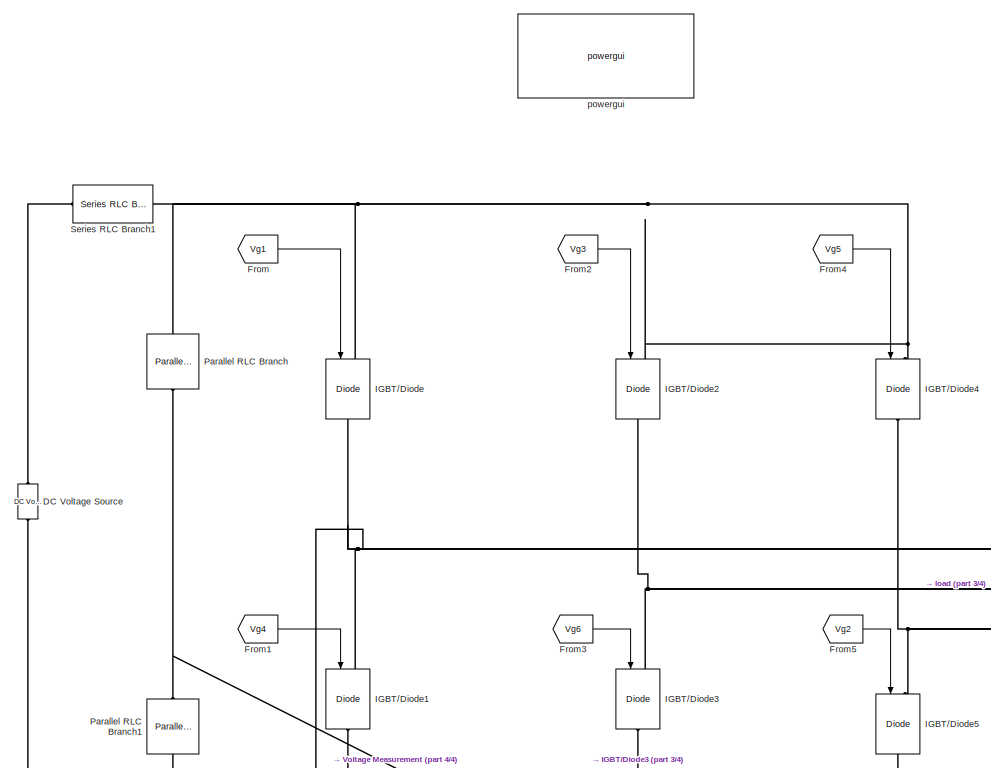
[diagram: root canvas - part 1/4, top center region]
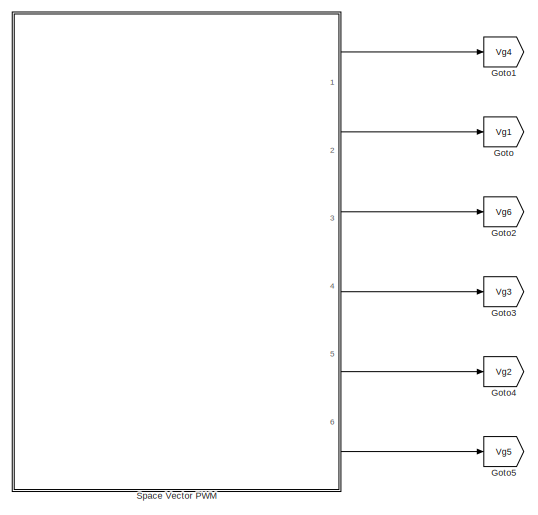
[diagram: root canvas - part 2/4, middle left region]
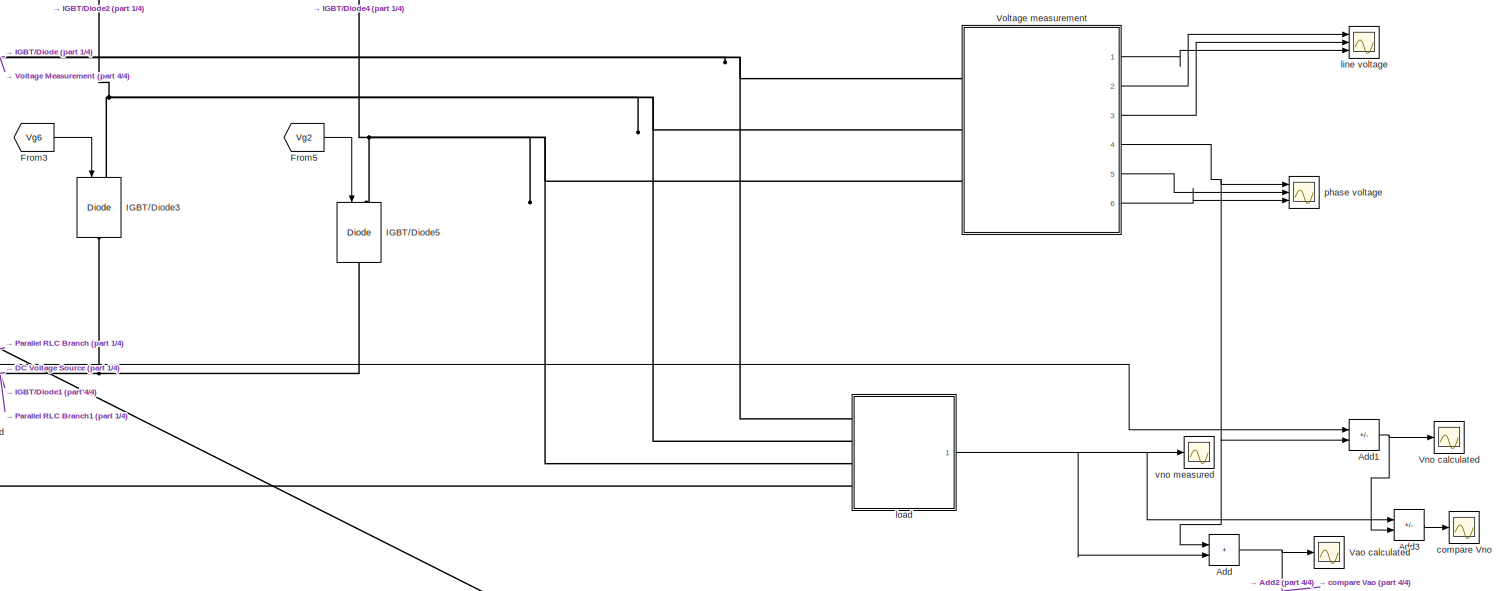
[diagram: root canvas - part 3/4, middle right region]
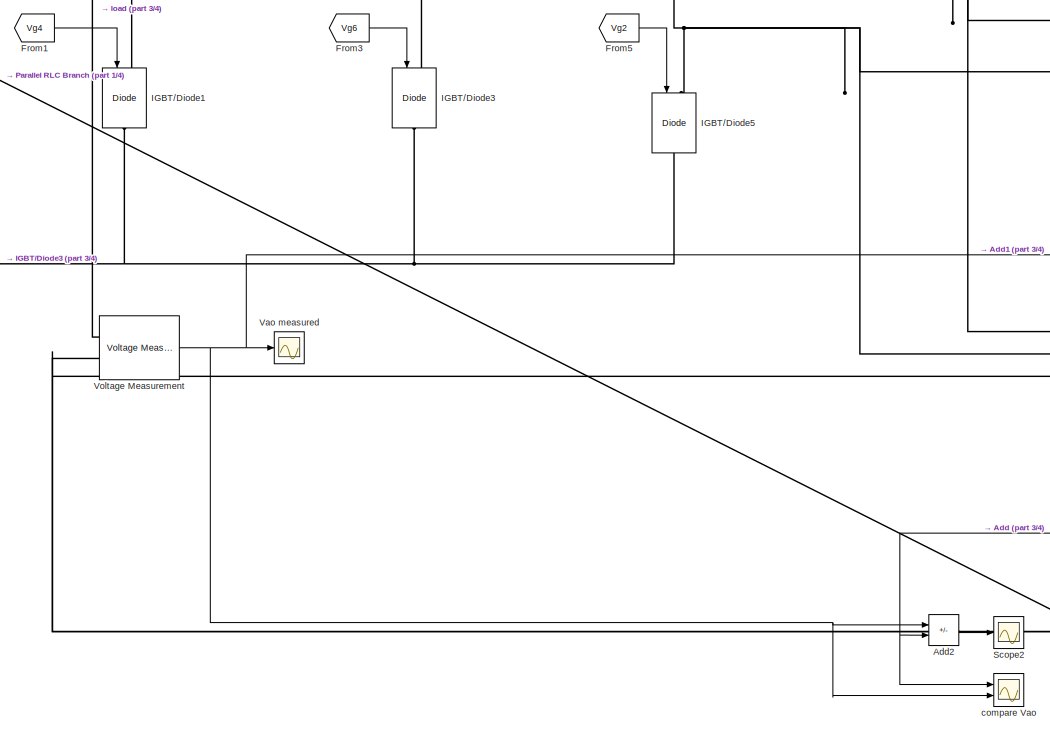
[diagram: root canvas - part 4/4, central region]
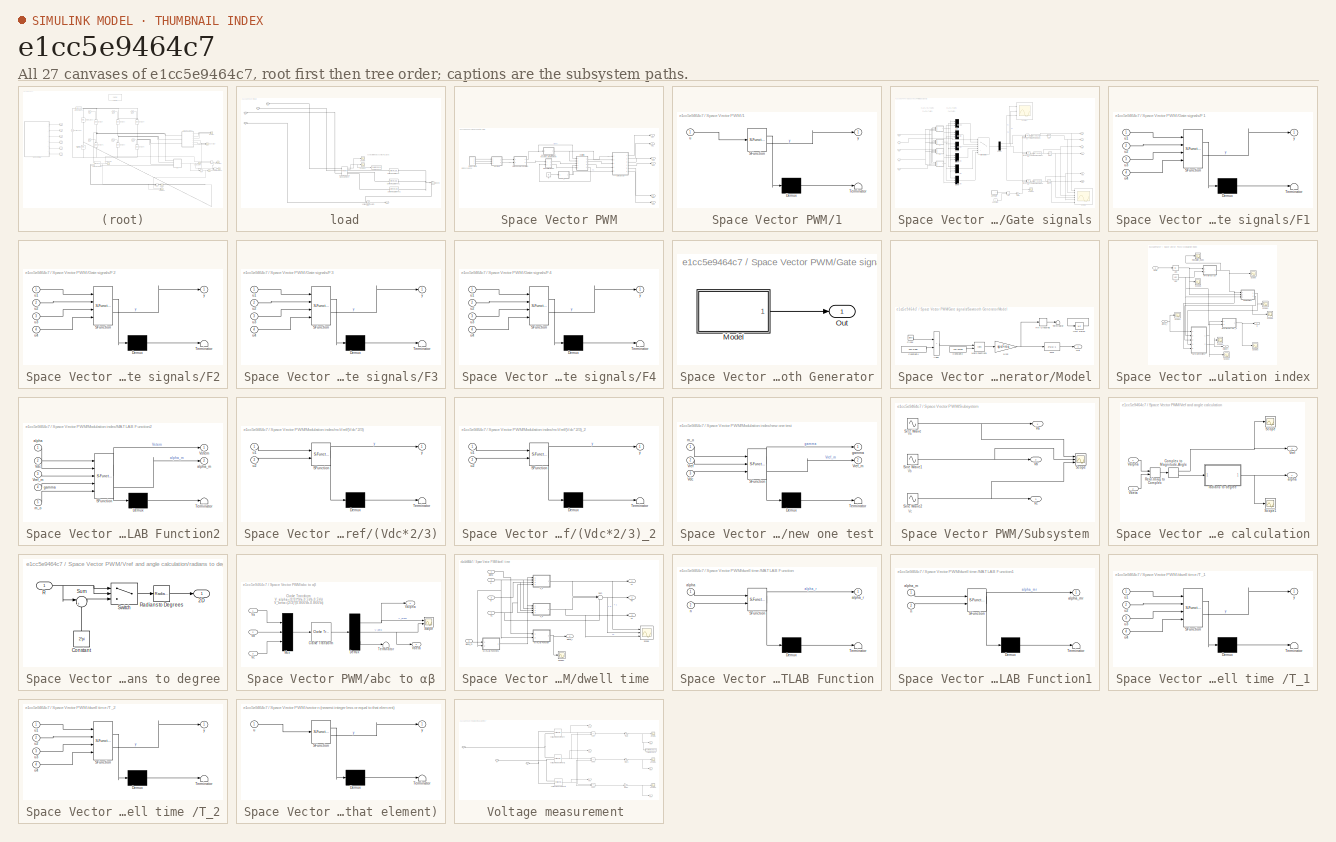
[diagram: thumbnail index - all 27 canvases of the model, root first then tree order]
MODEL slx_e1cc5e9464c7
KIND model
CONFIG AbsTol = auto
CONFIG EnableMultiTasking = off
CONFIG FixedStep = stepsize
CONFIG MaxStep = 2e-6
CONFIG MinStep = auto
CONFIG RelTol = 1e-3
CONFIG SampleTimeConstraint = Unconstrained
CONFIG SolverName = FixedStepAuto
CONFIG StartTime = 0.0
CONFIG StopTime = stoptime
BLOCK [SubSystem]  load
  Ports = [0, 1, 0, 0, 0, 4]
  RequestExecContextInheritance = off
BLOCK [Reference]  load/Ground  REF=spsGroundLib/Ground
  NameLocation = right
  Ports = [0, 0, 0, 0, 0, 1]
  SourceBlock = spsGroundLib/Ground
  SourceProductBaseCode = PS
  SourceType = Ground
BLOCK [Scope]  load/Scope
  Floating = off
  NumInputPorts = 1
  Ports = [1]
  ScopeSpecificationString = Simulink.scopes.TimeScopeBlockCfg('CurrentConfiguration', extmgr.ConfigurationSet(extmgr.Configuration('Core','General UI',true),extmgr.Configuration('Core','Source UI',true),extmgr.Configuration('Sources','WiredSimulink',true,'DataLoggingVariableName','ScopeData4'),extmgr.Configuration('Visuals','Time Domain',true,'SerializedDisplays',{struct('MinYLimReal','-650.01049','MaxYLimReal','563.12849','...<+1601ch>
BLOCK [Scope]  load/Scope1
  Floating = off
  NumInputPorts = 1
  Ports = [1]
  ScopeSpecificationString = Simulink.scopes.TimeScopeBlockCfg('CurrentConfiguration', extmgr.ConfigurationSet(extmgr.Configuration('Core','General UI',true,'FigureColor',[1 1 1]),extmgr.Configuration('Core','Source UI',true),extmgr.Configuration('Sources','WiredSimulink',true,'DataLoggingVariableName','ScopeData5','DataLoggingSaveFormat','StructureWithTime'),extmgr.Configuration('Visuals','Time Domain',true,'SerializedDispla...<+1791ch>
BLOCK [Reference]  load/Series RLC Branch  REF=spsSeriesRLCBranchLib/Series RLC Branch
  Ports = [0, 0, 0, 0, 0, 1, 1]
  SourceBlock = spsSeriesRLCBranchLib/Series RLC Branch
  SourceProductBaseCode = PS
  SourceType = Series RLC Branch
BLOCK [Reference]  load/Series RLC Branch1  REF=spsSeriesRLCBranchLib/Series RLC Branch
  Ports = [0, 0, 0, 0, 0, 1, 1]
  SourceBlock = spsSeriesRLCBranchLib/Series RLC Branch
  SourceProductBaseCode = PS
  SourceType = Series RLC Branch
BLOCK [Reference]  load/Series RLC Branch2  REF=spsSeriesRLCBranchLib/Series RLC Branch
  Ports = [0, 0, 0, 0, 0, 1, 1]
  SourceBlock = spsSeriesRLCBranchLib/Series RLC Branch
  SourceProductBaseCode = PS
  SourceType = Series RLC Branch
BLOCK [Reference]  load/Three-Phase V-I Measurement  REF=spsThreePhaseVIMeasurementLib/Three-Phase
V-I Measurement
  Ports = [0, 2, 0, 0, 0, 3, 3]
  SourceBlock = spsThreePhaseVIMeasurementLib/Three-Phase\nV-I Measurement
  SourceProductBaseCode = PS
  SourceType = Three-Phase VI Measurement
BLOCK [ToWorkspace]  load/To Workspace
  FixptAsFi = on
  MaxDataPoints = inf
  Ports = [1]
  SampleTime = -1
  Save2DSignal = 2-D array (concatenate along first dimension)
  VariableName = Iout
BLOCK [PMIOPort]  load/Va
  Side = Left
BLOCK [PMIOPort]  load/Vb
  Port = 2
  Side = Left
BLOCK [PMIOPort]  load/Vc
  Port = 3
  Side = Left
BLOCK [Outport]  load/Vno
BLOCK [Reference]  load/Voltage Measurement  REF=spsVoltageMeasurementLib/Voltage Measurement
  Ports = [0, 1, 0, 0, 0, 2]
  SourceBlock = spsVoltageMeasurementLib/Voltage Measurement
  SourceProductBaseCode = PS
  SourceType = Voltage Measurement
  UserDataPersistent = on
BLOCK [PMIOPort]  load/o
  Port = 4
  Side = Left
BLOCK [Sum] Add
  IconShape = rectangular
  Ports = [2, 1]
BLOCK [Sum] Add1
  IconShape = rectangular
  Inputs = +-
  Ports = [2, 1]
BLOCK [Sum] Add2
  IconShape = rectangular
  Inputs = +-
  Ports = [2, 1]
BLOCK [Sum] Add3
  IconShape = rectangular
  Inputs = +-
  Ports = [2, 1]
BLOCK [Reference] DC Voltage Source  REF=spsDCVoltageSourceLib/DC Voltage Source
  Ports = [0, 0, 0, 0, 0, 1, 1]
  SourceBlock = spsDCVoltageSourceLib/DC Voltage Source
  SourceProductBaseCode = PS
  SourceType = DC Voltage Source
BLOCK [From] From
  GotoTag = Vg1
BLOCK [From] From1
  GotoTag = Vg4
BLOCK [From] From2
  GotoTag = Vg3
BLOCK [From] From3
  GotoTag = Vg6
BLOCK [From] From4
  GotoTag = Vg5
BLOCK [From] From5
  GotoTag = Vg2
BLOCK [Goto] Goto
  GotoTag = Vg1
BLOCK [Goto] Goto1
  GotoTag = Vg4
BLOCK [Goto] Goto2
  GotoTag = Vg6
BLOCK [Goto] Goto3
  GotoTag = Vg3
BLOCK [Goto] Goto4
  GotoTag = Vg2
BLOCK [Goto] Goto5
  GotoTag = Vg5
BLOCK [Reference] IGBT//Diode  REF=spsIGBTDiodeLib/IGBT//Diode
  NameLocation = left
  Ports = [1, 0, 0, 0, 0, 1, 1]
  SourceBlock = spsIGBTDiodeLib/IGBT//Diode
  SourceProductBaseCode = PS
  SourceType = IGBT/Diode
BLOCK [Reference] IGBT//Diode1  REF=spsIGBTDiodeLib/IGBT//Diode
  NameLocation = left
  Ports = [1, 0, 0, 0, 0, 1, 1]
  SourceBlock = spsIGBTDiodeLib/IGBT//Diode
  SourceProductBaseCode = PS
  SourceType = IGBT/Diode
BLOCK [Reference] IGBT//Diode2  REF=spsIGBTDiodeLib/IGBT//Diode
  NameLocation = left
  Ports = [1, 0, 0, 0, 0, 1, 1]
  SourceBlock = spsIGBTDiodeLib/IGBT//Diode
  SourceProductBaseCode = PS
  SourceType = IGBT/Diode
BLOCK [Reference] IGBT//Diode3  REF=spsIGBTDiodeLib/IGBT//Diode
  NameLocation = left
  Ports = [1, 0, 0, 0, 0, 1, 1]
  SourceBlock = spsIGBTDiodeLib/IGBT//Diode
  SourceProductBaseCode = PS
  SourceType = IGBT/Diode
BLOCK [Reference] IGBT//Diode4  REF=spsIGBTDiodeLib/IGBT//Diode
  NameLocation = left
  Ports = [1, 0, 0, 0, 0, 1, 1]
  SourceBlock = spsIGBTDiodeLib/IGBT//Diode
  SourceProductBaseCode = PS
  SourceType = IGBT/Diode
BLOCK [Reference] IGBT//Diode5  REF=spsIGBTDiodeLib/IGBT//Diode
  NameLocation = left
  Ports = [1, 0, 0, 0, 0, 1, 1]
  SourceBlock = spsIGBTDiodeLib/IGBT//Diode
  SourceProductBaseCode = PS
  SourceType = IGBT/Diode
BLOCK [Reference] Parallel RLC Branch  REF=spsParallelRLCBranchLib/Parallel RLC Branch
  AttributesFormatString = \n
  NameLocation = left
  Ports = [0, 0, 0, 0, 0, 1, 1]
  SourceBlock = spsParallelRLCBranchLib/Parallel RLC Branch
  SourceProductBaseCode = PS
  SourceType = Parallel RLC Branch
BLOCK [Reference] Parallel RLC Branch1  REF=spsParallelRLCBranchLib/Parallel RLC Branch
  AttributesFormatString = \n
  NameLocation = left
  Ports = [0, 0, 0, 0, 0, 1, 1]
  SourceBlock = spsParallelRLCBranchLib/Parallel RLC Branch
  SourceProductBaseCode = PS
  SourceType = Parallel RLC Branch
BLOCK [Scope] Scope2
  Floating = off
  NumInputPorts = 1
  Ports = [1]
  ScopeSpecificationString = Simulink.scopes.TimeScopeBlockCfg('CurrentConfiguration', extmgr.ConfigurationSet(extmgr.Configuration('Core','General UI',true),extmgr.Configuration('Core','Source UI',true),extmgr.Configuration('Sources','WiredSimulink',true,'DataLoggingVariableName','ScopeData5'),extmgr.Configuration('Visuals','Time Domain',true,'SerializedDisplays',{struct('MinYLimReal','-0.00000000000029','MaxYLimReal','0.000...<+1454ch>
BLOCK [Reference] Series RLC Branch1  REF=spsSeriesRLCBranchLib/Series RLC Branch
  NameLocation = top
  Ports = [0, 0, 0, 0, 0, 1, 1]
  SourceBlock = spsSeriesRLCBranchLib/Series RLC Branch
  SourceProductBaseCode = PS
  SourceType = Series RLC Branch
BLOCK [SubSystem] Space Vector PWM
  Ports = [0, 6]
  RequestExecContextInheritance = off
BLOCK [SubSystem] Space Vector PWM/1
  ErrorFcn = Stateflow.Translate.translate
  PermitHierarchicalResolution = ExplicitOnly
  Ports = [1, 1]
  RequestExecContextInheritance = off
  SFBlockType = MATLAB Function
  TreatAsAtomicUnit = on
BLOCK [Demux] Space Vector PWM/1/ Demux 
  Outputs = 1
  Ports = [1, 1]
BLOCK [S-Function] Space Vector PWM/1/ SFunction 
  EnableBusSupport = on
  FunctionName = sf_sfun
  PortCounts = [1 2]
  Ports = [1, 2]
  SFcnIsStateOwnerBlock = off
  SFunctionDeploymentMode = off
  Tag = Stateflow S-Function 9
BLOCK [Terminator] Space Vector PWM/1/ Terminator 
BLOCK [Inport] Space Vector PWM/1/u
BLOCK [Outport] Space Vector PWM/1/y
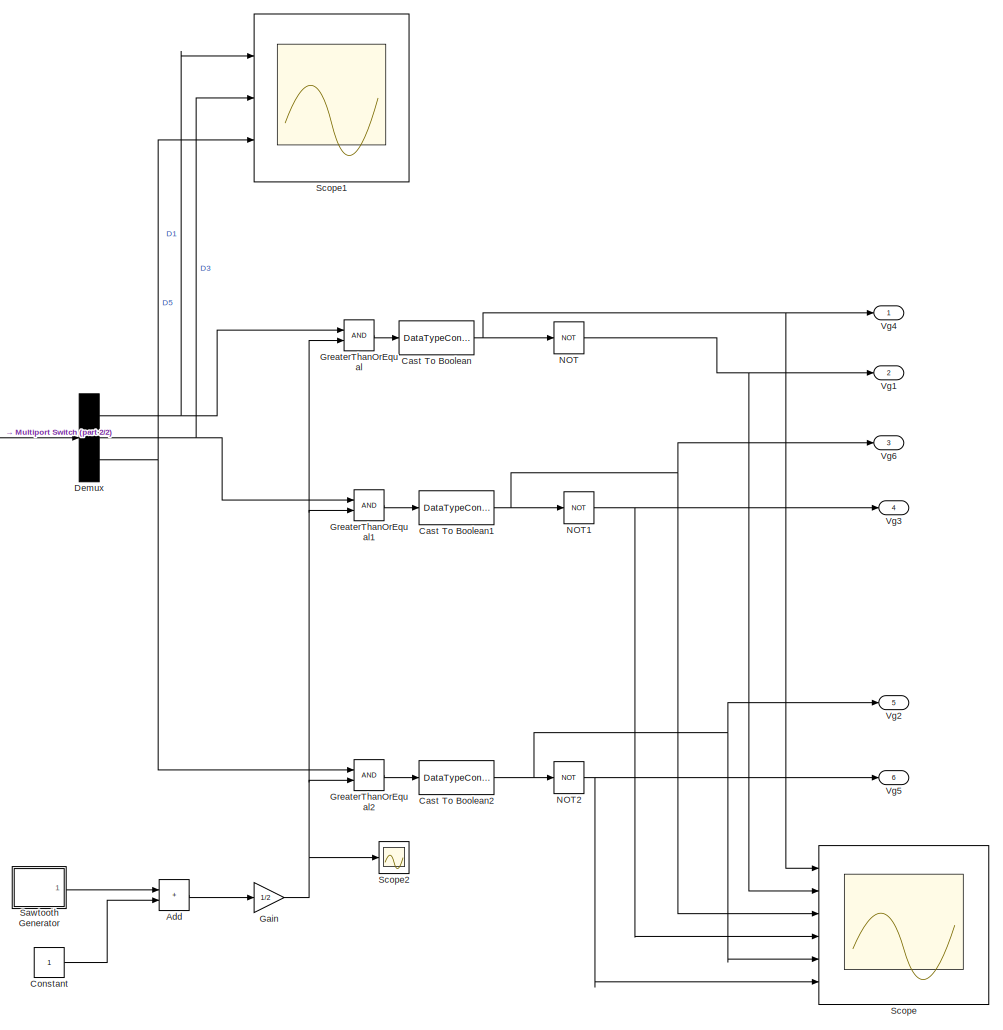
[diagram: Space Vector PWM/Gate signals - part 1/2, right side, full height]
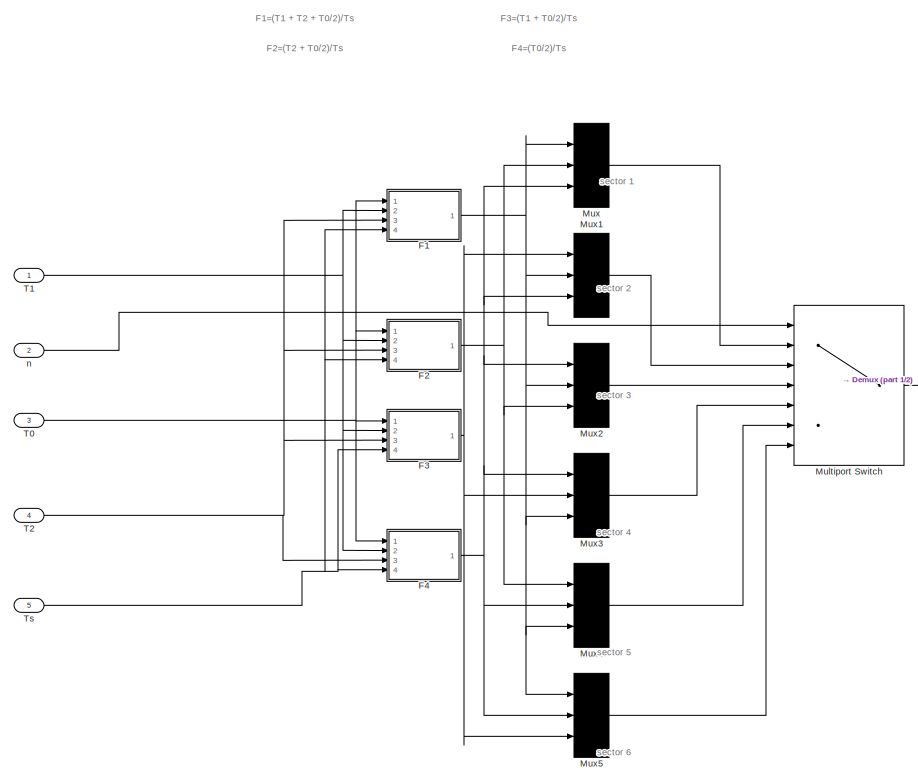
[diagram: Space Vector PWM/Gate signals - part 2/2, left side, full height]
BLOCK [SubSystem] Space Vector PWM/Gate signals
  Ports = [5, 6]
  RequestExecContextInheritance = off
BLOCK [Sum] Space Vector PWM/Gate signals/Add
  IconShape = rectangular
  Ports = [2, 1]
BLOCK [DataTypeConversion] Space Vector PWM/Gate signals/Cast To Boolean
  OutDataTypeStr = boolean
  RndMeth = Floor
  SaturateOnIntegerOverflow = off
BLOCK [DataTypeConversion] Space Vector PWM/Gate signals/Cast To Boolean1
  OutDataTypeStr = boolean
  RndMeth = Floor
  SaturateOnIntegerOverflow = off
BLOCK [DataTypeConversion] Space Vector PWM/Gate signals/Cast To Boolean2
  OutDataTypeStr = boolean
  RndMeth = Floor
  SaturateOnIntegerOverflow = off
BLOCK [Constant] Space Vector PWM/Gate signals/Constant
BLOCK [Demux] Space Vector PWM/Gate signals/Demux
  Outputs = 3
  Ports = [1, 3]
BLOCK [SubSystem] Space Vector PWM/Gate signals/F1
  ErrorFcn = Stateflow.Translate.translate
  PermitHierarchicalResolution = ExplicitOnly
  Ports = [4, 1]
  RequestExecContextInheritance = off
  SFBlockType = MATLAB Function
  TreatAsAtomicUnit = on
BLOCK [Demux] Space Vector PWM/Gate signals/F1/ Demux 
  Outputs = 1
  Ports = [1, 1]
BLOCK [S-Function] Space Vector PWM/Gate signals/F1/ SFunction 
  EnableBusSupport = on
  FunctionName = sf_sfun
  PortCounts = [4 2]
  Ports = [4, 2]
  SFcnIsStateOwnerBlock = off
  SFunctionDeploymentMode = off
  Tag = Stateflow S-Function 5
BLOCK [Terminator] Space Vector PWM/Gate signals/F1/ Terminator 
BLOCK [Inport] Space Vector PWM/Gate signals/F1/u1
BLOCK [Inport] Space Vector PWM/Gate signals/F1/u2
  Port = 2
BLOCK [Inport] Space Vector PWM/Gate signals/F1/u3
  Port = 3
BLOCK [Inport] Space Vector PWM/Gate signals/F1/u4
  Port = 4
BLOCK [Outport] Space Vector PWM/Gate signals/F1/y
BLOCK [SubSystem] Space Vector PWM/Gate signals/F2
  ErrorFcn = Stateflow.Translate.translate
  PermitHierarchicalResolution = ExplicitOnly
  Ports = [4, 1]
  RequestExecContextInheritance = off
  SFBlockType = MATLAB Function
  TreatAsAtomicUnit = on
BLOCK [Demux] Space Vector PWM/Gate signals/F2/ Demux 
  Outputs = 1
  Ports = [1, 1]
BLOCK [S-Function] Space Vector PWM/Gate signals/F2/ SFunction 
  EnableBusSupport = on
  FunctionName = sf_sfun
  PortCounts = [4 2]
  Ports = [4, 2]
  SFcnIsStateOwnerBlock = off
  SFunctionDeploymentMode = off
  Tag = Stateflow S-Function 6
BLOCK [Terminator] Space Vector PWM/Gate signals/F2/ Terminator 
BLOCK [Inport] Space Vector PWM/Gate signals/F2/u1
BLOCK [Inport] Space Vector PWM/Gate signals/F2/u2
  Port = 2
BLOCK [Inport] Space Vector PWM/Gate signals/F2/u3
  Port = 3
BLOCK [Inport] Space Vector PWM/Gate signals/F2/u4
  Port = 4
BLOCK [Outport] Space Vector PWM/Gate signals/F2/y
BLOCK [SubSystem] Space Vector PWM/Gate signals/F3
  ErrorFcn = Stateflow.Translate.translate
  PermitHierarchicalResolution = ExplicitOnly
  Ports = [4, 1]
  RequestExecContextInheritance = off
  SFBlockType = MATLAB Function
  TreatAsAtomicUnit = on
BLOCK [Demux] Space Vector PWM/Gate signals/F3/ Demux 
  Outputs = 1
  Ports = [1, 1]
BLOCK [S-Function] Space Vector PWM/Gate signals/F3/ SFunction 
  EnableBusSupport = on
  FunctionName = sf_sfun
  PortCounts = [4 2]
  Ports = [4, 2]
  SFcnIsStateOwnerBlock = off
  SFunctionDeploymentMode = off
  Tag = Stateflow S-Function 7
BLOCK [Terminator] Space Vector PWM/Gate signals/F3/ Terminator 
BLOCK [Inport] Space Vector PWM/Gate signals/F3/u1
BLOCK [Inport] Space Vector PWM/Gate signals/F3/u2
  Port = 2
BLOCK [Inport] Space Vector PWM/Gate signals/F3/u3
  Port = 3
BLOCK [Inport] Space Vector PWM/Gate signals/F3/u4
  Port = 4
BLOCK [Outport] Space Vector PWM/Gate signals/F3/y
BLOCK [SubSystem] Space Vector PWM/Gate signals/F4
  ErrorFcn = Stateflow.Translate.translate
  PermitHierarchicalResolution = ExplicitOnly
  Ports = [4, 1]
  RequestExecContextInheritance = off
  SFBlockType = MATLAB Function
  TreatAsAtomicUnit = on
BLOCK [Demux] Space Vector PWM/Gate signals/F4/ Demux 
  Outputs = 1
  Ports = [1, 1]
BLOCK [S-Function] Space Vector PWM/Gate signals/F4/ SFunction 
  EnableBusSupport = on
  FunctionName = sf_sfun
  PortCounts = [4 2]
  Ports = [4, 2]
  SFcnIsStateOwnerBlock = off
  SFunctionDeploymentMode = off
  Tag = Stateflow S-Function 8
BLOCK [Terminator] Space Vector PWM/Gate signals/F4/ Terminator 
BLOCK [Inport] Space Vector PWM/Gate signals/F4/u1
BLOCK [Inport] Space Vector PWM/Gate signals/F4/u2
  Port = 2
BLOCK [Inport] Space Vector PWM/Gate signals/F4/u3
  Port = 3
BLOCK [Inport] Space Vector PWM/Gate signals/F4/u4
  Port = 4
BLOCK [Outport] Space Vector PWM/Gate signals/F4/y
BLOCK [Gain] Space Vector PWM/Gate signals/Gain
  Gain = 1/2
BLOCK [RelationalOperator] Space Vector PWM/Gate signals/GreaterThanOrEqual
  InputSameDT = off
  OutDataTypeStr = boolean
  Ports = [2, 1]
  RndMeth = Simplest
BLOCK [RelationalOperator] Space Vector PWM/Gate signals/GreaterThanOrEqual1
  InputSameDT = off
  OutDataTypeStr = boolean
  Ports = [2, 1]
  RndMeth = Simplest
BLOCK [RelationalOperator] Space Vector PWM/Gate signals/GreaterThanOrEqual2
  InputSameDT = off
  OutDataTypeStr = boolean
  Ports = [2, 1]
  RndMeth = Simplest
BLOCK [MultiPortSwitch] Space Vector PWM/Gate signals/Multiport Switch
  DiagnosticForDefault = None
  InputSameDT = off
  Inputs = 6
  Ports = [7, 1]
  SaturateOnIntegerOverflow = off
BLOCK [Mux] Space Vector PWM/Gate signals/Mux
  DisplayOption = bar
  Inputs = 3
  Ports = [3, 1]
BLOCK [Mux] Space Vector PWM/Gate signals/Mux1
  DisplayOption = bar
  Inputs = 3
  Ports = [3, 1]
BLOCK [Mux] Space Vector PWM/Gate signals/Mux2
  DisplayOption = bar
  Inputs = 3
  Ports = [3, 1]
BLOCK [Mux] Space Vector PWM/Gate signals/Mux3
  DisplayOption = bar
  Inputs = 3
  Ports = [3, 1]
BLOCK [Mux] Space Vector PWM/Gate signals/Mux4
  DisplayOption = bar
  Inputs = 3
  Ports = [3, 1]
BLOCK [Mux] Space Vector PWM/Gate signals/Mux5
  DisplayOption = bar
  Inputs = 3
  Ports = [3, 1]
BLOCK [Logic] Space Vector PWM/Gate signals/NOT
  AllPortsSameDT = off
  IconShape = distinctive
  Operator = NOT
  OutDataTypeStr = boolean
  Ports = [1, 1]
BLOCK [Logic] Space Vector PWM/Gate signals/NOT1
  AllPortsSameDT = off
  IconShape = distinctive
  Operator = NOT
  OutDataTypeStr = boolean
  Ports = [1, 1]
BLOCK [Logic] Space Vector PWM/Gate signals/NOT2
  AllPortsSameDT = off
  IconShape = distinctive
  Operator = NOT
  OutDataTypeStr = boolean
  Ports = [1, 1]
BLOCK [SubSystem] Space Vector PWM/Gate signals/Sawtooth Generator
  AncestorBlock = spsSawtoothGeneratorLib/Sawtooth\nGenerator
  CloseFcn = sps_rtmsupport('CloseFcn', gcbh);
  CopyFcn = sps_rtmsupport('CopyFcn', gcbh);
  DeleteFcn = sps_rtmsupport('DeleteFcn', gcbh);
  DialogController = POWERSYS.PowerSysDialog
  LoadFcn = sps_rtmsupport('LoadFcn', gcbh);
  ModelCloseFcn = sps_rtmsupport('ModelCloseFcn', gcbh);
  NameChangeFcn = sps_rtmsupport('NameChangeFcn', gcbh);
  OpenFcn = sps_rtmsupport('OpenFcn', gcbh, []);
  Ports = [0, 1]
  PostSaveFcn = sps_rtmsupport('PostSaveFcn', gcbh);
  PreCopyFcn = sps_rtmsupport('PreCopyFcn', gcbh);
  PreDeleteFcn = sps_rtmsupport('PreDeleteFcn', gcbh);
  PreSaveFcn = sps_rtmsupport('PreSaveFcn', gcbh);
  RequestExecContextInheritance = off
  StartFcn = sps_rtmsupport('StartFcn', gcbh);
  StopFcn = sps_rtmsupport('StopFcn', gcbh);
  UndoDeleteFcn = sps_rtmsupport('UndoDeleteFcn', gcbh);
BLOCK [SubSystem] Space Vector PWM/Gate signals/Sawtooth Generator/Model
  AncestorBlock = spsSawtoothGeneratorModel/Continuous
  Ports = [0, 1]
  RequestExecContextInheritance = off
BLOCK [Gain] Space Vector PWM/Gate signals/Sawtooth Generator/Model/1\ib2
  Gain = sps.Freq
  NameLocation = top
  OutDataTypeStr = Inherit: Same as input
  ParamDataTypeStr = Inherit: Same as input
  SaturateOnIntegerOverflow = on
BLOCK [Sum] Space Vector PWM/Gate signals/Sawtooth Generator/Model/Add2
  IconShape = rectangular
  Ports = [2, 1]
BLOCK [Clock] Space Vector PWM/Gate signals/Sawtooth Generator/Model/Clock
  Decimation = 1
  NameLocation = top
BLOCK [Constant] Space Vector PWM/Gate signals/Sawtooth Generator/Model/Constant2
  SampleTime = 0
  Value = sps.Period
BLOCK [Constant] Space Vector PWM/Gate signals/Sawtooth Generator/Model/Constant4
  SampleTime = 0
  Value = sps.Delay
BLOCK [Fcn] Space Vector PWM/Gate signals/Sawtooth Generator/Model/Fcn1
  Expr = 2*u(1)-1
BLOCK [HitCross] Space Vector PWM/Gate signals/Sawtooth Generator/Model/Hit Crossing
  Ports = [1, 1]
BLOCK [Math] Space Vector PWM/Gate signals/Sawtooth Generator/Model/Math Function1
  Operator = rem
  Ports = [2, 1]
  SignedPower = on
BLOCK [Outport] Space Vector PWM/Gate signals/Sawtooth Generator/Model/Out
BLOCK [Terminator] Space Vector PWM/Gate signals/Sawtooth Generator/Model/Terminator
BLOCK [UnitDelay] Space Vector PWM/Gate signals/Sawtooth Generator/Model/Unit Delay
  HasFrameUpgradeWarning = on
  SampleTime = u_sampletime
BLOCK [Outport] Space Vector PWM/Gate signals/Sawtooth Generator/Out
  VectorParamsAs1DForOutWhenUnconnected = off
BLOCK [Scope] Space Vector PWM/Gate signals/Scope
  Floating = off
  NumInputPorts = 6
  Ports = [6]
  ScopeSpecificationString = Simulink.scopes.TimeScopeBlockCfg('CurrentConfiguration', extmgr.ConfigurationSet(extmgr.Configuration('Core','General UI',true),extmgr.Configuration('Core','Source UI',true),extmgr.Configuration('Sources','WiredSimulink',true,'DataLoggingVariableName','ScopeData1'),extmgr.Configuration('Visuals','Time Domain',true,'SerializedDisplays',{struct('MinYLimReal','-0.125','MaxYLimReal','1.125','YLabelRe...<+4780ch>
BLOCK [Scope] Space Vector PWM/Gate signals/Scope1
  Floating = off
  NumInputPorts = 3
  Ports = [3]
  ScopeSpecificationString = Simulink.scopes.TimeScopeBlockCfg('CurrentConfiguration', extmgr.ConfigurationSet(extmgr.Configuration('Core','General UI',true),extmgr.Configuration('Core','Source UI',true),extmgr.Configuration('Sources','WiredSimulink',true,'DataLoggingVariableName','ScopeData2'),extmgr.Configuration('Visuals','Time Domain',true,'SerializedDisplays',{struct('MinYLimReal','-0.19393','MaxYLimReal','1.19393','YLab...<+1540ch>
BLOCK [Scope] Space Vector PWM/Gate signals/Scope2
  Floating = off
  NumInputPorts = 1
  Ports = [1]
  ScopeSpecificationString = Simulink.scopes.TimeScopeBlockCfg('CurrentConfiguration', extmgr.ConfigurationSet(extmgr.Configuration('Core','General UI',true),extmgr.Configuration('Core','Source UI',true),extmgr.Configuration('Sources','WiredSimulink',true,'DataLoggingVariableName','ScopeData1'),extmgr.Configuration('Visuals','Time Domain',true,'SerializedDisplays',{struct('MinYLimReal','-0.12417','MaxYLimReal','1.1175','YLabe...<+1631ch>
BLOCK [Inport] Space Vector PWM/Gate signals/T0
  Port = 3
BLOCK [Inport] Space Vector PWM/Gate signals/T1
BLOCK [Inport] Space Vector PWM/Gate signals/T2
  Port = 4
BLOCK [Inport] Space Vector PWM/Gate signals/Ts
  Port = 5
BLOCK [Outport] Space Vector PWM/Gate signals/Vg1
  Port = 2
BLOCK [Outport] Space Vector PWM/Gate signals/Vg2
  Port = 5
BLOCK [Outport] Space Vector PWM/Gate signals/Vg3
  Port = 4
BLOCK [Outport] Space Vector PWM/Gate signals/Vg4
BLOCK [Outport] Space Vector PWM/Gate signals/Vg5
  Port = 6
BLOCK [Outport] Space Vector PWM/Gate signals/Vg6
  Port = 3
BLOCK [Inport] Space Vector PWM/Gate signals/n
  Port = 2
BLOCK [SubSystem] Space Vector PWM/Modulation index
  Ports = [2, 2]
  RequestExecContextInheritance = off
BLOCK [Abs] Space Vector PWM/Modulation index/Abs
  SaturateOnIntegerOverflow = off
BLOCK [SubSystem] Space Vector PWM/Modulation index/MATLAB Function2
  ErrorFcn = Stateflow.Translate.translate
  PermitHierarchicalResolution = ExplicitOnly
  Ports = [5, 2]
  RequestExecContextInheritance = off
  SFBlockType = MATLAB Function
  TreatAsAtomicUnit = on
BLOCK [Demux] Space Vector PWM/Modulation index/MATLAB Function2/ Demux 
  Outputs = 1
  Ports = [1, 1]
BLOCK [S-Function] Space Vector PWM/Modulation index/MATLAB Function2/ SFunction 
  EnableBusSupport = on
  FunctionName = sf_sfun
  PortCounts = [5 3]
  Ports = [5, 3]
  SFcnIsStateOwnerBlock = off
  SFunctionDeploymentMode = off
  Tag = Stateflow S-Function 13
BLOCK [Terminator] Space Vector PWM/Modulation index/MATLAB Function2/ Terminator 
BLOCK [Inport] Space Vector PWM/Modulation index/MATLAB Function2/Vdc
  Port = 2
BLOCK [Inport] Space Vector PWM/Modulation index/MATLAB Function2/Vref_m
  Port = 3
BLOCK [Outport] Space Vector PWM/Modulation index/MATLAB Function2/Vstern
BLOCK [Inport] Space Vector PWM/Modulation index/MATLAB Function2/alpha
BLOCK [Outport] Space Vector PWM/Modulation index/MATLAB Function2/alpha_m
  Port = 2
BLOCK [Inport] Space Vector PWM/Modulation index/MATLAB Function2/gamma
  Port = 4
BLOCK [Inport] Space Vector PWM/Modulation index/MATLAB Function2/m_o
  Port = 5
BLOCK [Outport] Space Vector PWM/Modulation index/Outport
  Port = 2
BLOCK [Scope] Space Vector PWM/Modulation index/Scope
  Floating = off
  NumInputPorts = 1
  Ports = [1]
  ScopeSpecificationString = Simulink.scopes.TimeScopeBlockCfg('CurrentConfiguration', extmgr.ConfigurationSet(extmgr.Configuration('Core','General UI',true),extmgr.Configuration('Core','Source UI',true),extmgr.Configuration('Sources','WiredSimulink',true,'DataLoggingVariableName','ScopeData5'),extmgr.Configuration('Visuals','Time Domain',true,'SerializedDisplays',{struct('MinYLimReal','0.9423076923076903','MaxYLimReal','0.94...<+1533ch>
BLOCK [Scope] Space Vector PWM/Modulation index/Scope1
  Floating = off
  NumInputPorts = 1
  Ports = [1]
  ScopeSpecificationString = Simulink.scopes.TimeScopeBlockCfg('CurrentConfiguration', extmgr.ConfigurationSet(extmgr.Configuration('Core','General UI',true),extmgr.Configuration('Core','Source UI',true),extmgr.Configuration('Sources','WiredSimulink',true,'DataLoggingVariableName','ScopeData1'),extmgr.Configuration('Visuals','Time Domain',true,'SerializedDisplays',{struct('MinYLimReal','0.5708','MaxYLimReal','2.5708','YLabelR...<+1422ch>
BLOCK [Scope] Space Vector PWM/Modulation index/Scope2
  Floating = off
  NumInputPorts = 1
  Ports = [1]
  ScopeSpecificationString = Simulink.scopes.TimeScopeBlockCfg('CurrentConfiguration', extmgr.ConfigurationSet(extmgr.Configuration('Core','General UI',true),extmgr.Configuration('Core','Source UI',true),extmgr.Configuration('Sources','WiredSimulink',true,'DataLoggingVariableName','ScopeData1'),extmgr.Configuration('Visuals','Time Domain',true,'SerializedDisplays',{struct('MinYLimReal','441.62486','MaxYLimReal','528.70835','Y...<+1467ch>
BLOCK [Scope] Space Vector PWM/Modulation index/Scope3
  Floating = off
  NumInputPorts = 1
  Ports = [1]
  ScopeSpecificationString = Simulink.scopes.TimeScopeBlockCfg('CurrentConfiguration', extmgr.ConfigurationSet(extmgr.Configuration('Core','General UI',true),extmgr.Configuration('Core','Source UI',true),extmgr.Configuration('Sources','WiredSimulink',true,'DataLoggingVariableName','ScopeData2'),extmgr.Configuration('Visuals','Time Domain',true,'SerializedDisplays',{struct('MinYLimReal','-0.125','MaxYLimReal','1.125','YLabelRe...<+1438ch>
BLOCK [Scope] Space Vector PWM/Modulation index/Scope4
  Floating = off
  NumInputPorts = 1
  Ports = [1]
  ScopeSpecificationString = Simulink.scopes.TimeScopeBlockCfg('CurrentConfiguration', extmgr.ConfigurationSet(extmgr.Configuration('Core','General UI',true),extmgr.Configuration('Core','Source UI',true),extmgr.Configuration('Sources','WiredSimulink',true,'DataLoggingVariableName','ScopeData3'),extmgr.Configuration('Visuals','Time Domain',true,'SerializedDisplays',{struct('MinYLimReal','-0.1309','MaxYLimReal','1.1781','YLabel...<+1656ch>
BLOCK [Scope] Space Vector PWM/Modulation index/Scope5
  Floating = off
  NumInputPorts = 1
  Ports = [1]
  ScopeSpecificationString = Simulink.scopes.TimeScopeBlockCfg('CurrentConfiguration', extmgr.ConfigurationSet(extmgr.Configuration('Core','General UI',true),extmgr.Configuration('Core','Source UI',true),extmgr.Configuration('Sources','WiredSimulink',true,'DataLoggingVariableName','ScopeData1'),extmgr.Configuration('Visuals','Time Domain',true,'SerializedDisplays',{struct('MinYLimReal','-0.1309','MaxYLimReal','1.1781','YLabel...<+1448ch>
BLOCK [Scope] Space Vector PWM/Modulation index/Scope6
  Floating = off
  NumInputPorts = 1
  Ports = [1]
  ScopeSpecificationString = Simulink.scopes.TimeScopeBlockCfg('CurrentConfiguration', extmgr.ConfigurationSet(extmgr.Configuration('Core','General UI',true),extmgr.Configuration('Core','Source UI',true),extmgr.Configuration('Sources','WiredSimulink',true,'DataLoggingVariableName','ScopeData1'),extmgr.Configuration('Visuals','Time Domain',true,'SerializedDisplays',{struct('MinYLimReal','199.99999999999957','MaxYLimReal','200....<+1491ch>
BLOCK [Scope] Space Vector PWM/Modulation index/Scope8
  Floating = off
  NumInputPorts = 1
  Ports = [1]
  ScopeSpecificationString = Simulink.scopes.TimeScopeBlockCfg('CurrentConfiguration', extmgr.ConfigurationSet(extmgr.Configuration('Core','General UI',true),extmgr.Configuration('Core','Source UI',true),extmgr.Configuration('Sources','WiredSimulink',true,'DataLoggingVariableName','ScopeData8'),extmgr.Configuration('Visuals','Time Domain',true,'SerializedDisplays',{struct('MinYLimReal','199.99999999999957','MaxYLimReal','200....<+1471ch>
BLOCK [Constant] Space Vector PWM/Modulation index/Vdc
  Value = Vdc
BLOCK [Inport] Space Vector PWM/Modulation index/Vref
BLOCK [Outport] Space Vector PWM/Modulation index/a
BLOCK [Inport] Space Vector PWM/Modulation index/alpha_r
  Port = 2
BLOCK [SubSystem] Space Vector PWM/Modulation index/m=Vref//(Vdc*2//3)
  ErrorFcn = Stateflow.Translate.translate
  PermitHierarchicalResolution = ExplicitOnly
  Ports = [2, 1]
  RequestExecContextInheritance = off
  SFBlockType = MATLAB Function
  TreatAsAtomicUnit = on
BLOCK [Demux] Space Vector PWM/Modulation index/m=Vref//(Vdc*2//3)/ Demux 
  Outputs = 1
  Ports = [1, 1]
BLOCK [S-Function] Space Vector PWM/Modulation index/m=Vref//(Vdc*2//3)/ SFunction 
  EnableBusSupport = on
  FunctionName = sf_sfun
  PortCounts = [2 2]
  Ports = [2, 2]
  SFcnIsStateOwnerBlock = off
  SFunctionDeploymentMode = off
  Tag = Stateflow S-Function 2
BLOCK [Terminator] Space Vector PWM/Modulation index/m=Vref//(Vdc*2//3)/ Terminator 
BLOCK [Inport] Space Vector PWM/Modulation index/m=Vref//(Vdc*2//3)/u1
BLOCK [Inport] Space Vector PWM/Modulation index/m=Vref//(Vdc*2//3)/u2
  Port = 2
BLOCK [Outport] Space Vector PWM/Modulation index/m=Vref//(Vdc*2//3)/y
BLOCK [SubSystem] Space Vector PWM/Modulation index/m=Vref//(Vdc*2//3)_2
  ErrorFcn = Stateflow.Translate.translate
  PermitHierarchicalResolution = ExplicitOnly
  Ports = [2, 1]
  RequestExecContextInheritance = off
  SFBlockType = MATLAB Function
  TreatAsAtomicUnit = on
BLOCK [Demux] Space Vector PWM/Modulation index/m=Vref//(Vdc*2//3)_2/ Demux 
  Outputs = 1
  Ports = [1, 1]
BLOCK [S-Function] Space Vector PWM/Modulation index/m=Vref//(Vdc*2//3)_2/ SFunction 
  EnableBusSupport = on
  FunctionName = sf_sfun
  PortCounts = [2 2]
  Ports = [2, 2]
  SFcnIsStateOwnerBlock = off
  SFunctionDeploymentMode = off
  Tag = Stateflow S-Function 12
BLOCK [Terminator] Space Vector PWM/Modulation index/m=Vref//(Vdc*2//3)_2/ Terminator 
BLOCK [Inport] Space Vector PWM/Modulation index/m=Vref//(Vdc*2//3)_2/u1
BLOCK [Inport] Space Vector PWM/Modulation index/m=Vref//(Vdc*2//3)_2/u2
  Port = 2
BLOCK [Outport] Space Vector PWM/Modulation index/m=Vref//(Vdc*2//3)_2/y
BLOCK [Scope] Space Vector PWM/Modulation index/modulation_index
  Floating = off
  NumInputPorts = 1
  Ports = [1]
  ScopeSpecificationString = Simulink.scopes.TimeScopeBlockCfg('CurrentConfiguration', extmgr.ConfigurationSet(extmgr.Configuration('Core','General UI',true),extmgr.Configuration('Core','Source UI',true),extmgr.Configuration('Sources','WiredSimulink',true,'DataLoggingVariableName','ScopeData1'),extmgr.Configuration('Visuals','Time Domain',true,'SerializedDisplays',{struct('MinYLimReal','0.9384615384615363','MaxYLimReal','0.93...<+1490ch>
BLOCK [SubSystem] Space Vector PWM/Modulation index/new one test
  ErrorFcn = Stateflow.Translate.translate
  PermitHierarchicalResolution = ExplicitOnly
  Ports = [3, 2]
  RequestExecContextInheritance = off
  SFBlockType = MATLAB Function
  TreatAsAtomicUnit = on
BLOCK [Demux] Space Vector PWM/Modulation index/new one test/ Demux 
  Outputs = 1
  Ports = [1, 1]
BLOCK [S-Function] Space Vector PWM/Modulation index/new one test/ SFunction 
  EnableBusSupport = on
  FunctionName = sf_sfun
  PortCounts = [3 3]
  Ports = [3, 3]
  SFcnIsStateOwnerBlock = off
  SFunctionDeploymentMode = off
  Tag = Stateflow S-Function 10
BLOCK [Terminator] Space Vector PWM/Modulation index/new one test/ Terminator 
BLOCK [Inport] Space Vector PWM/Modulation index/new one test/Vdc
  Port = 3
BLOCK [Inport] Space Vector PWM/Modulation index/new one test/Vref
  Port = 2
BLOCK [Outport] Space Vector PWM/Modulation index/new one test/Vref_m
  Port = 2
BLOCK [Outport] Space Vector PWM/Modulation index/new one test/gamma
BLOCK [Inport] Space Vector PWM/Modulation index/new one test/m_o
BLOCK [SubSystem] Space Vector PWM/Subsystem
  Ports = [0, 3]
  RequestExecContextInheritance = off
BLOCK [Scope] Space Vector PWM/Subsystem/Scope
  Floating = off
  NumInputPorts = 3
  Ports = [3]
  ScopeSpecificationString = Simulink.scopes.TimeScopeBlockCfg('CurrentConfiguration', extmgr.ConfigurationSet(extmgr.Configuration('Core','General UI',true),extmgr.Configuration('Core','Source UI',true),extmgr.Configuration('Sources','WiredSimulink',true),extmgr.Configuration('Visuals','Time Domain',true,'SerializedDisplays',{struct('MinYLimReal','-287.5','MaxYLimReal','287.5','YLabelReal','','MinYLimMag',' 0.00000','MaxYLim...<+1419ch>
BLOCK [Sin] Space Vector PWM/Subsystem/Sine Wave
  Amplitude = V
  Frequency = 2*pi*frequency
  Ports = [0, 1]
  SampleTime = 0
BLOCK [Sin] Space Vector PWM/Subsystem/Sine Wave1
  Amplitude = V
  Frequency = 2*pi*frequency
  Phase = -2*pi/3
  Ports = [0, 1]
  SampleTime = 0
BLOCK [Sin] Space Vector PWM/Subsystem/Sine Wave2
  Amplitude = V
  Frequency = 2*pi*frequency
  Phase = -4*pi/3
  Ports = [0, 1]
  SampleTime = 0
BLOCK [Outport] Space Vector PWM/Subsystem/Va
BLOCK [Outport] Space Vector PWM/Subsystem/Vb
  Port = 2
BLOCK [Outport] Space Vector PWM/Subsystem/Vc
  Port = 3
BLOCK [Outport] Space Vector PWM/Vg1
  Port = 2
BLOCK [Outport] Space Vector PWM/Vg2
  Port = 5
BLOCK [Outport] Space Vector PWM/Vg3
  Port = 4
BLOCK [Outport] Space Vector PWM/Vg4
BLOCK [Outport] Space Vector PWM/Vg5
  Port = 6
BLOCK [Outport] Space Vector PWM/Vg6
  Port = 3
BLOCK [SubSystem] Space Vector PWM/Vref and angle calculation
  Ports = [2, 2]
  RequestExecContextInheritance = off
BLOCK [ComplexToMagnitudeAngle] Space Vector PWM/Vref and angle calculation/Complex to Magnitude-Angle
  Ports = [1, 2]
BLOCK [RealImagToComplex] Space Vector PWM/Vref and angle calculation/Real-Imag to Complex
  Ports = [2, 1]
BLOCK [Scope] Space Vector PWM/Vref and angle calculation/Scope
  Floating = off
  NumInputPorts = 1
  Ports = [1]
  ScopeSpecificationString = Simulink.scopes.TimeScopeBlockCfg('CurrentConfiguration', extmgr.ConfigurationSet(extmgr.Configuration('Core','General UI',true),extmgr.Configuration('Core','Source UI',true),extmgr.Configuration('Sources','WiredSimulink',true,'DataLoggingVariableName','ScopeData2'),extmgr.Configuration('Visuals','Time Domain',true,'SerializedDisplays',{struct('MinYLimReal','199.99999999999957','MaxYLimReal','200....<+1469ch>
BLOCK [Scope] Space Vector PWM/Vref and angle calculation/Scope1
  Floating = off
  NumInputPorts = 1
  Ports = [1]
  ScopeSpecificationString = Simulink.scopes.TimeScopeBlockCfg('CurrentConfiguration', extmgr.ConfigurationSet(extmgr.Configuration('Core','General UI',true),extmgr.Configuration('Core','Source UI',true),extmgr.Configuration('Sources','WiredSimulink',true,'DataLoggingVariableName','ScopeData3'),extmgr.Configuration('Visuals','Time Domain',true,'SerializedDisplays',{struct('MinYLimReal','-45.00000','MaxYLimReal','405.00000','Y...<+1386ch>
BLOCK [Inport] Space Vector PWM/Vref and angle calculation/Valpha
BLOCK [Inport] Space Vector PWM/Vref and angle calculation/Vbeta
  Port = 2
BLOCK [Outport] Space Vector PWM/Vref and angle calculation/Vref
  Port = 2
BLOCK [Outport] Space Vector PWM/Vref and angle calculation/alpha
BLOCK [SubSystem] Space Vector PWM/Vref and angle calculation/radians to degree
  Ports = [1, 1]
  RequestExecContextInheritance = off
BLOCK [Outport] Space Vector PWM/Vref and angle calculation/radians to degree/2D
BLOCK [Constant] Space Vector PWM/Vref and angle calculation/radians to degree/Constant
  NameLocation = right
  Value = 2*pi
BLOCK [Inport] Space Vector PWM/Vref and angle calculation/radians to degree/R
BLOCK [Reference] Space Vector PWM/Vref and angle calculation/radians to degree/Radians to Degrees  REF=simulink_extras/Transformations/Radians
to Degrees
  Ports = [1, 1]
  SourceBlock = simulink_extras/Transformations/Radians\nto Degrees
  SourceProductBaseCode = SL
  SourceType = RadiansToDegrees
BLOCK [Sum] Space Vector PWM/Vref and angle calculation/radians to degree/Sum
  Inputs = |++
  Ports = [2, 1]
BLOCK [Switch] Space Vector PWM/Vref and angle calculation/radians to degree/Switch
  InputSameDT = off
  SaturateOnIntegerOverflow = off
BLOCK [SubSystem] Space Vector PWM/abc to αβ
  Ports = [3, 2]
  RequestExecContextInheritance = off
BLOCK [Reference] Space Vector PWM/abc to αβ/Clarke Transform  REF=eeTransforms/Clarke Transform
  Ports = [1, 1]
  SourceBlock = eeTransforms/Clarke Transform
  SourceProductBaseCode = PS
  SourceType = Clarke Transform
BLOCK [Demux] Space Vector PWM/abc to αβ/Demux
  Outputs = 3
  Ports = [1, 3]
BLOCK [Mux] Space Vector PWM/abc to αβ/Mux
  DisplayOption = bar
  Inputs = 3
  Ports = [3, 1]
BLOCK [Scope] Space Vector PWM/abc to αβ/Scope
  Floating = off
  NumInputPorts = 2
  Ports = [2]
  ScopeSpecificationString = Simulink.scopes.TimeScopeBlockCfg('CurrentConfiguration', extmgr.ConfigurationSet(extmgr.Configuration('Core','General UI',true,'FigureColor',[1 1 1]),extmgr.Configuration('Core','Source UI',true),extmgr.Configuration('Sources','WiredSimulink',true,'DataLoggingVariableName','ScopeData1'),extmgr.Configuration('Visuals','Time Domain',true,'SerializedDisplays',{struct('MinYLimReal','-250.00000','MaxY...<+1991ch>
BLOCK [Terminator] Space Vector PWM/abc to αβ/Terminator
BLOCK [Inport] Space Vector PWM/abc to αβ/Va
BLOCK [Outport] Space Vector PWM/abc to αβ/Valpha
BLOCK [Inport] Space Vector PWM/abc to αβ/Vb
  Port = 2
BLOCK [Outport] Space Vector PWM/abc to αβ/Vbeta
  Port = 2
BLOCK [Inport] Space Vector PWM/abc to αβ/Vc
  Port = 3
BLOCK [SubSystem] Space Vector PWM/dwell time 
  Ports = [5, 4]
  RequestExecContextInheritance = off
BLOCK [SubSystem] Space Vector PWM/dwell time /MATLAB Function
  ErrorFcn = Stateflow.Translate.translate
  PermitHierarchicalResolution = ExplicitOnly
  Ports = [2, 1]
  RequestExecContextInheritance = off
  SFBlockType = MATLAB Function
  TreatAsAtomicUnit = on
BLOCK [Demux] Space Vector PWM/dwell time /MATLAB Function/ Demux 
  Outputs = 1
  Ports = [1, 1]
BLOCK [S-Function] Space Vector PWM/dwell time /MATLAB Function/ SFunction 
  EnableBusSupport = on
  FunctionName = sf_sfun
  PortCounts = [2 2]
  Ports = [2, 2]
  SFcnIsStateOwnerBlock = off
  SFunctionDeploymentMode = off
  Tag = Stateflow S-Function 14
BLOCK [Terminator] Space Vector PWM/dwell time /MATLAB Function/ Terminator 
BLOCK [Inport] Space Vector PWM/dwell time /MATLAB Function/alpha
BLOCK [Outport] Space Vector PWM/dwell time /MATLAB Function/alpha_r
BLOCK [Inport] Space Vector PWM/dwell time /MATLAB Function/n
  Port = 2
BLOCK [SubSystem] Space Vector PWM/dwell time /MATLAB Function1
  ErrorFcn = Stateflow.Translate.translate
  PermitHierarchicalResolution = ExplicitOnly
  Ports = [2, 1]
  RequestExecContextInheritance = off
  SFBlockType = MATLAB Function
  TreatAsAtomicUnit = on
BLOCK [Demux] Space Vector PWM/dwell time /MATLAB Function1/ Demux 
  Outputs = 1
  Ports = [1, 1]
BLOCK [S-Function] Space Vector PWM/dwell time /MATLAB Function1/ SFunction 
  EnableBusSupport = on
  FunctionName = sf_sfun
  PortCounts = [2 2]
  Ports = [2, 2]
  SFcnIsStateOwnerBlock = off
  SFunctionDeploymentMode = off
  Tag = Stateflow S-Function 11
BLOCK [Terminator] Space Vector PWM/dwell time /MATLAB Function1/ Terminator 
BLOCK [Inport] Space Vector PWM/dwell time /MATLAB Function1/alpha_m
BLOCK [Outport] Space Vector PWM/dwell time /MATLAB Function1/alpha_mr
BLOCK [Inport] Space Vector PWM/dwell time /MATLAB Function1/n
  Port = 2
BLOCK [Scope] Space Vector PWM/dwell time /Scope
  Floating = off
  NumInputPorts = 3
  Ports = [3]
  ScopeSpecificationString = Simulink.scopes.TimeScopeBlockCfg('CurrentConfiguration', extmgr.ConfigurationSet(extmgr.Configuration('Core','General UI',true),extmgr.Configuration('Core','Source UI',true),extmgr.Configuration('Sources','WiredSimulink',true,'DataLoggingVariableName','ScopeData4'),extmgr.Configuration('Visuals','Time Domain',true,'SerializedDisplays',{struct('MinYLimReal','-0.00006','MaxYLimReal','0.00056','YLab...<+1618ch>
BLOCK [Scope] Space Vector PWM/dwell time /Scope1
  Floating = off
  NumInputPorts = 1
  Ports = [1]
  ScopeSpecificationString = Simulink.scopes.TimeScopeBlockCfg('CurrentConfiguration', extmgr.ConfigurationSet(extmgr.Configuration('Core','General UI',true),extmgr.Configuration('Core','Source UI',true),extmgr.Configuration('Sources','WiredSimulink',true,'DataLoggingVariableName','ScopeData7'),extmgr.Configuration('Visuals','Time Domain',true,'SerializedDisplays',{struct('MinYLimReal','-0.1309','MaxYLimReal','1.1781','YLabel...<+1641ch>
BLOCK [Sum] Space Vector PWM/dwell time /Sum
  Inputs = |--+
  Ports = [3, 1]
BLOCK [Outport] Space Vector PWM/dwell time /T0
  Port = 2
BLOCK [Outport] Space Vector PWM/dwell time /T1
BLOCK [Outport] Space Vector PWM/dwell time /T2
  Port = 3
BLOCK [SubSystem] Space Vector PWM/dwell time /T_1
  ErrorFcn = Stateflow.Translate.translate
  PermitHierarchicalResolution = ExplicitOnly
  Ports = [4, 1]
  RequestExecContextInheritance = off
  SFBlockType = MATLAB Function
  TreatAsAtomicUnit = on
BLOCK [Demux] Space Vector PWM/dwell time /T_1/ Demux 
  Outputs = 1
  Ports = [1, 1]
BLOCK [S-Function] Space Vector PWM/dwell time /T_1/ SFunction 
  EnableBusSupport = on
  FunctionName = sf_sfun
  PortCounts = [4 2]
  Ports = [4, 2]
  SFcnIsStateOwnerBlock = off
  SFunctionDeploymentMode = off
  Tag = Stateflow S-Function 3
BLOCK [Terminator] Space Vector PWM/dwell time /T_1/ Terminator 
BLOCK [Inport] Space Vector PWM/dwell time /T_1/u1
BLOCK [Inport] Space Vector PWM/dwell time /T_1/u2
  Port = 2
BLOCK [Inport] Space Vector PWM/dwell time /T_1/u3
  Port = 3
BLOCK [Inport] Space Vector PWM/dwell time /T_1/u4
  Port = 4
BLOCK [Outport] Space Vector PWM/dwell time /T_1/y
BLOCK [SubSystem] Space Vector PWM/dwell time /T_2
  ErrorFcn = Stateflow.Translate.translate
  PermitHierarchicalResolution = ExplicitOnly
  Ports = [4, 1]
  RequestExecContextInheritance = off
  SFBlockType = MATLAB Function
  TreatAsAtomicUnit = on
BLOCK [Demux] Space Vector PWM/dwell time /T_2/ Demux 
  Outputs = 1
  Ports = [1, 1]
BLOCK [S-Function] Space Vector PWM/dwell time /T_2/ SFunction 
  EnableBusSupport = on
  FunctionName = sf_sfun
  PortCounts = [4 2]
  Ports = [4, 2]
  SFcnIsStateOwnerBlock = off
  SFunctionDeploymentMode = off
  Tag = Stateflow S-Function 4
BLOCK [Terminator] Space Vector PWM/dwell time /T_2/ Terminator 
BLOCK [Inport] Space Vector PWM/dwell time /T_2/u1
BLOCK [Inport] Space Vector PWM/dwell time /T_2/u2
  Port = 2
BLOCK [Inport] Space Vector PWM/dwell time /T_2/u3
  Port = 3
BLOCK [Inport] Space Vector PWM/dwell time /T_2/u4
  Port = 4
BLOCK [Outport] Space Vector PWM/dwell time /T_2/y
BLOCK [Inport] Space Vector PWM/dwell time /Ts
  Port = 4
BLOCK [Inport] Space Vector PWM/dwell time /a
  Port = 3
BLOCK [Inport] Space Vector PWM/dwell time /alpha
BLOCK [Inport] Space Vector PWM/dwell time /alpha_m
  Port = 5
BLOCK [Outport] Space Vector PWM/dwell time /alpha_r
  Port = 4
BLOCK [Inport] Space Vector PWM/dwell time /n
  Port = 2
BLOCK [Constant] Space Vector PWM/fs
  Value = fs
BLOCK [SubSystem] Space Vector PWM/sector n (nearest integer less or equal to that element)
  ErrorFcn = Stateflow.Translate.translate
  PermitHierarchicalResolution = ExplicitOnly
  Ports = [1, 1]
  RequestExecContextInheritance = off
  SFBlockType = MATLAB Function
  TreatAsAtomicUnit = on
BLOCK [Demux] Space Vector PWM/sector n (nearest integer less or equal to that element)/ Demux 
  Outputs = 1
  Ports = [1, 1]
BLOCK [S-Function] Space Vector PWM/sector n (nearest integer less or equal to that element)/ SFunction 
  EnableBusSupport = on
  FunctionName = sf_sfun
  PortCounts = [1 2]
  Ports = [1, 2]
  SFcnIsStateOwnerBlock = off
  SFunctionDeploymentMode = off
  Tag = Stateflow S-Function 1
BLOCK [Terminator] Space Vector PWM/sector n (nearest integer less or equal to that element)/ Terminator 
BLOCK [Inport] Space Vector PWM/sector n (nearest integer less or equal to that element)/u
BLOCK [Outport] Space Vector PWM/sector n (nearest integer less or equal to that element)/y
BLOCK [Scope] Vao calculated
  Floating = off
  NumInputPorts = 1
  Ports = [1]
  ScopeSpecificationString = Simulink.scopes.TimeScopeBlockCfg('CurrentConfiguration', extmgr.ConfigurationSet(extmgr.Configuration('Core','General UI',true,'FigureColor',[1 1 1]),extmgr.Configuration('Core','Source UI',true),extmgr.Configuration('Sources','WiredSimulink',true,'DataLoggingVariableName','ScopeData3'),extmgr.Configuration('Visuals','Time Domain',true,'SerializedDisplays',{struct('MinYLimReal','-487.77046','MaxY...<+1579ch>
BLOCK [Scope] Vao measured
  Floating = off
  NumInputPorts = 1
  Ports = [1]
  ScopeSpecificationString = Simulink.scopes.TimeScopeBlockCfg('CurrentConfiguration', extmgr.ConfigurationSet(extmgr.Configuration('Core','General UI',true),extmgr.Configuration('Core','Source UI',true),extmgr.Configuration('Sources','WiredSimulink',true,'DataLoggingVariableName','ScopeData1'),extmgr.Configuration('Visuals','Time Domain',true,'SerializedDisplays',{struct('MinYLimReal','-487.76996','MaxYLimReal','487.78562','...<+1411ch>
BLOCK [Scope] Vno calculated
  Floating = off
  NumInputPorts = 1
  Ports = [1]
  ScopeSpecificationString = Simulink.scopes.TimeScopeBlockCfg('CurrentConfiguration', extmgr.ConfigurationSet(extmgr.Configuration('Core','General UI',true),extmgr.Configuration('Core','Source UI',true),extmgr.Configuration('Sources','WiredSimulink',true,'DataLoggingVariableName','ScopeData4'),extmgr.Configuration('Visuals','Time Domain',true,'SerializedDisplays',{struct('MinYLimReal','-487.49995','MaxYLimReal','487.49977','...<+1426ch>
BLOCK [Reference] Voltage Measurement  REF=spsVoltageMeasurementLib/Voltage Measurement
  Ports = [0, 1, 0, 0, 0, 2]
  SourceBlock = spsVoltageMeasurementLib/Voltage Measurement
  SourceProductBaseCode = PS
  SourceType = Voltage Measurement
  UserDataPersistent = on
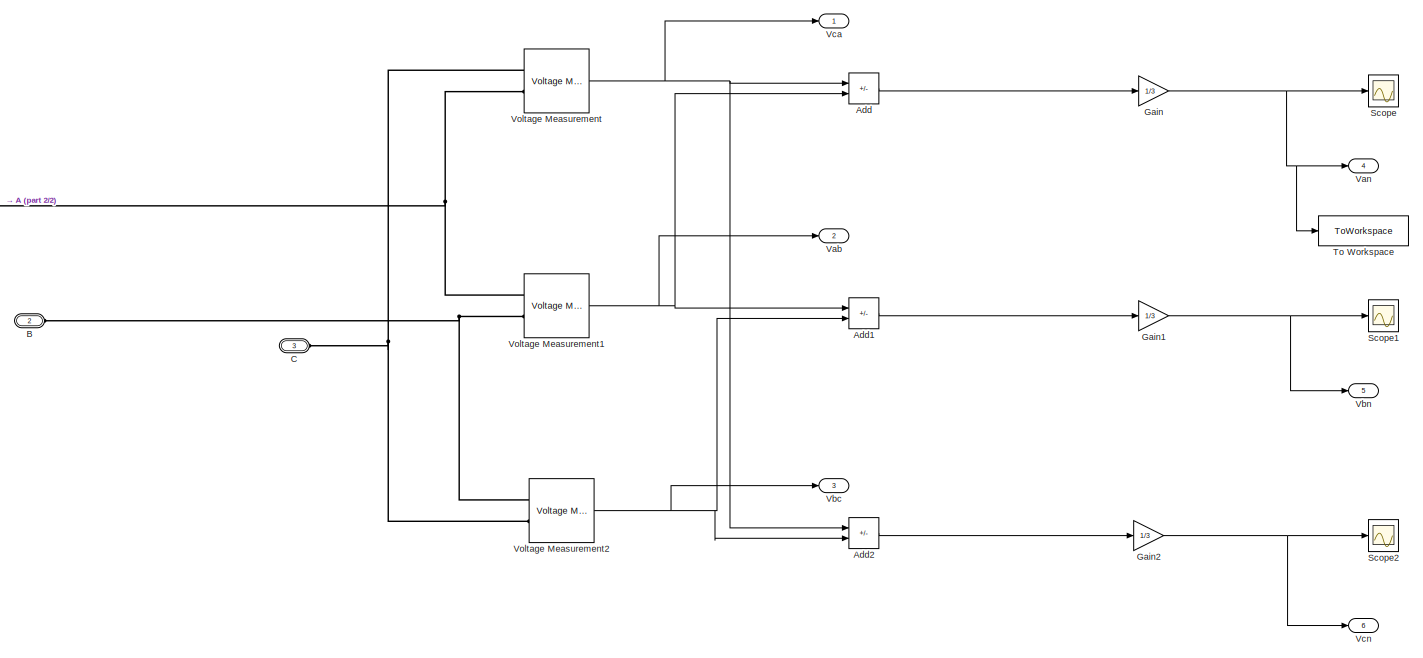
[diagram: Voltage measurement  - part 1/2, most of the canvas]
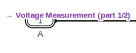
[diagram: Voltage measurement  - part 2/2, middle left region]
BLOCK [SubSystem] Voltage measurement 
  Ports = [0, 6, 0, 0, 0, 3]
  RequestExecContextInheritance = off
BLOCK [PMIOPort] Voltage measurement /A
  Side = Left
BLOCK [Sum] Voltage measurement /Add
  IconShape = rectangular
  Inputs = -+
  Ports = [2, 1]
BLOCK [Sum] Voltage measurement /Add1
  IconShape = rectangular
  Inputs = -+
  Ports = [2, 1]
BLOCK [Sum] Voltage measurement /Add2
  IconShape = rectangular
  Inputs = +-
  Ports = [2, 1]
BLOCK [PMIOPort] Voltage measurement /B
  Port = 2
  Side = Left
BLOCK [PMIOPort] Voltage measurement /C
  Port = 3
  Side = Left
BLOCK [Gain] Voltage measurement /Gain
  Gain = 1/3
BLOCK [Gain] Voltage measurement /Gain1
  Gain = 1/3
BLOCK [Gain] Voltage measurement /Gain2
  Gain = 1/3
BLOCK [Scope] Voltage measurement /Scope
  Floating = off
  NumInputPorts = 1
  Ports = [1]
  ScopeSpecificationString = Simulink.scopes.TimeScopeBlockCfg('CurrentConfiguration', extmgr.ConfigurationSet(extmgr.Configuration('Core','General UI',true),extmgr.Configuration('Core','Source UI',true),extmgr.Configuration('Sources','WiredSimulink',true,'DataLoggingVariableName','ScopeData1','DataLoggingSaveFormat','StructureWithTime'),extmgr.Configuration('Visuals','Time Domain',true,'SerializedDisplays',{struct('MinYLimRe...<+1454ch>
BLOCK [Scope] Voltage measurement /Scope1
  Floating = off
  NumInputPorts = 1
  Ports = [1]
  ScopeSpecificationString = Simulink.scopes.TimeScopeBlockCfg('CurrentConfiguration', extmgr.ConfigurationSet(extmgr.Configuration('Core','General UI',true),extmgr.Configuration('Core','Source UI',true),extmgr.Configuration('Sources','WiredSimulink',true,'DataLoggingVariableName','ScopeData2'),extmgr.Configuration('Visuals','Time Domain',true),extmgr.Configuration('Tools','Plot Navigation',true),extmgr.Configuration('Tools',...<+40ch>
BLOCK [Scope] Voltage measurement /Scope2
  Floating = off
  NumInputPorts = 1
  Ports = [1]
  ScopeSpecificationString = Simulink.scopes.TimeScopeBlockCfg('CurrentConfiguration', extmgr.ConfigurationSet(extmgr.Configuration('Core','General UI',true),extmgr.Configuration('Core','Source UI',true),extmgr.Configuration('Sources','WiredSimulink',true,'DataLoggingVariableName','ScopeData3'),extmgr.Configuration('Visuals','Time Domain',true),extmgr.Configuration('Tools','Plot Navigation',true),extmgr.Configuration('Tools',...<+40ch>
BLOCK [ToWorkspace] Voltage measurement /To Workspace
  FixptAsFi = on
  MaxDataPoints = inf
  Ports = [1]
  SampleTime = -1
  Save2DSignal = 2-D array (concatenate along first dimension)
  VariableName = Vanout
BLOCK [Outport] Voltage measurement /Vab
  Port = 2
BLOCK [Outport] Voltage measurement /Van
  Port = 4
BLOCK [Outport] Voltage measurement /Vbc
  Port = 3
BLOCK [Outport] Voltage measurement /Vbn
  Port = 5
BLOCK [Outport] Voltage measurement /Vca
BLOCK [Outport] Voltage measurement /Vcn
  Port = 6
BLOCK [Reference] Voltage measurement /Voltage Measurement  REF=spsVoltageMeasurementLib/Voltage Measurement
  Ports = [0, 1, 0, 0, 0, 2]
  SourceBlock = spsVoltageMeasurementLib/Voltage Measurement
  SourceProductBaseCode = PS
  SourceType = Voltage Measurement
  UserDataPersistent = on
BLOCK [Reference] Voltage measurement /Voltage Measurement1  REF=spsVoltageMeasurementLib/Voltage Measurement
  Ports = [0, 1, 0, 0, 0, 2]
  SourceBlock = spsVoltageMeasurementLib/Voltage Measurement
  SourceProductBaseCode = PS
  SourceType = Voltage Measurement
  UserDataPersistent = on
BLOCK [Reference] Voltage measurement /Voltage Measurement2  REF=spsVoltageMeasurementLib/Voltage Measurement
  Ports = [0, 1, 0, 0, 0, 2]
  SourceBlock = spsVoltageMeasurementLib/Voltage Measurement
  SourceProductBaseCode = PS
  SourceType = Voltage Measurement
  UserDataPersistent = on
BLOCK [Scope] compare Vao
  Floating = off
  NumInputPorts = 2
  Ports = [2]
  ScopeSpecificationString = Simulink.scopes.TimeScopeBlockCfg('CurrentConfiguration', extmgr.ConfigurationSet(extmgr.Configuration('Core','General UI',true),extmgr.Configuration('Core','Source UI',true),extmgr.Configuration('Sources','WiredSimulink',true,'DataLoggingVariableName','ScopeData6'),extmgr.Configuration('Visuals','Time Domain',true,'SerializedDisplays',{struct('MinYLimReal','-487.7688','MaxYLimReal','487.77076','Y...<+2087ch>
BLOCK [Scope] compare Vno
  Floating = off
  NumInputPorts = 1
  Ports = [1]
  ScopeSpecificationString = Simulink.scopes.TimeScopeBlockCfg('CurrentConfiguration', extmgr.ConfigurationSet(extmgr.Configuration('Core','General UI',true),extmgr.Configuration('Core','Source UI',true),extmgr.Configuration('Sources','WiredSimulink',true,'DataLoggingVariableName','ScopeData7'),extmgr.Configuration('Visuals','Time Domain',true,'SerializedDisplays',{struct('MinYLimReal','-0.00000000000031','MaxYLimReal','0.000...<+1435ch>
BLOCK [Scope] line voltage
  Floating = off
  NumInputPorts = 3
  Ports = [3]
  ScopeSpecificationString = Simulink.scopes.TimeScopeBlockCfg('CurrentConfiguration', extmgr.ConfigurationSet(extmgr.Configuration('Core','General UI',true),extmgr.Configuration('Core','Source UI',true),extmgr.Configuration('Sources','WiredSimulink',true,'DataLoggingVariableName','ScopeData6'),extmgr.Configuration('Visuals','Time Domain',true,'SerializedDisplays',{struct('MinYLimReal','-975.47766','MaxYLimReal','975.4194','Y...<+1462ch>
BLOCK [Scope] phase voltage
  Floating = off
  NumInputPorts = 3
  Ports = [3]
  ScopeSpecificationString = Simulink.scopes.TimeScopeBlockCfg('CurrentConfiguration', extmgr.ConfigurationSet(extmgr.Configuration('Core','General UI',true),extmgr.Configuration('Core','Source UI',true),extmgr.Configuration('Sources','WiredSimulink',true,'DataLoggingVariableName','ScopeData7'),extmgr.Configuration('Visuals','Time Domain',true,'SerializedDisplays',{struct('MinYLimReal','-649.98847','MaxYLimReal','650.03683','...<+1445ch>
BLOCK [Reference] powergui  REF=spspowerguiLib/powergui
  Ports = []
  Priority = 1
  SourceBlock = spspowerguiLib/powergui
  SourceProductBaseCode = PS
  SourceType = PSB option menu block
BLOCK [Scope] vno measured
  Floating = off
  NumInputPorts = 1
  Ports = [1]
  ScopeSpecificationString = Simulink.scopes.TimeScopeBlockCfg('CurrentConfiguration', extmgr.ConfigurationSet(extmgr.Configuration('Core','General UI',true),extmgr.Configuration('Core','Source UI',true),extmgr.Configuration('Sources','WiredSimulink',true,'DataLoggingVariableName','ScopeData2'),extmgr.Configuration('Visuals','Time Domain',true,'SerializedDisplays',{struct('MinYLimReal','-487.49995','MaxYLimReal','487.49977','...<+1450ch>
ANNOTATION  load: use resitor to replace series RLC load
ANNOTATION Space Vector PWM: refernece signal
ANNOTATION Space Vector PWM/Gate signals: F1=(T1 + T2 + T0/2)/Ts
ANNOTATION Space Vector PWM/Gate signals: F2=(T2 + T0/2)/Ts
ANNOTATION Space Vector PWM/Gate signals: F3=(T1 + T0/2)/Ts
ANNOTATION Space Vector PWM/Gate signals: F4=(T0/2)/Ts
ANNOTATION Space Vector PWM/Gate signals: sector 1
ANNOTATION Space Vector PWM/Gate signals: sector 2
ANNOTATION Space Vector PWM/Gate signals: sector 3
ANNOTATION Space Vector PWM/Gate signals: sector 4
ANNOTATION Space Vector PWM/Gate signals: sector 5
ANNOTATION Space Vector PWM/Gate signals: sector 6
ANNOTATION Space Vector PWM/Subsystem: Va
ANNOTATION Space Vector PWM/Subsystem: Vb
ANNOTATION Space Vector PWM/Subsystem: Vc
ANNOTATION Space Vector PWM/abc to αβ: Clarke Transform V_alpha=(2/3)*(Va-0.5Vb-0.5Vc) V_beta=(2/3)*(0.866Vb-0.866Vc)
LINE  load/Three-Phase V-I Measurement:1 ->  load/Scope:1
NET  load/Three-Phase V-I Measurement:2 ->  load/Scope1:1,  load/To Workspace:1
LINE  load/Voltage Measurement:1 ->  load/Vno:1
NET  load:1 -> Add3:1, Add:2, vno measured:1
NET Add1:1 -> Add3:2, Vno calculated:1
LINE Add2:1 -> Scope2:1
LINE Add3:1 -> compare Vno:1
NET Add:1 -> Add2:2, Vao calculated:1, compare Vao:1
LINE From1:1 -> IGBT//Diode1:1
LINE From2:1 -> IGBT//Diode2:1
LINE From3:1 -> IGBT//Diode3:1
LINE From4:1 -> IGBT//Diode4:1
LINE From5:1 -> IGBT//Diode5:1
LINE From:1 -> IGBT//Diode:1
NET Space Vector PWM/1:1 -> Space Vector PWM/Gate signals:5, Space Vector PWM/dwell time :4
LINE Space Vector PWM/Gate signals/Add:1 -> Space Vector PWM/Gate signals/Gain:1
NET Space Vector PWM/Gate signals/Cast To Boolean1:1 -> Space Vector PWM/Gate signals/NOT1:1, Space Vector PWM/Gate signals/Scope:3, Space Vector PWM/Gate signals/Vg6:1
NET Space Vector PWM/Gate signals/Cast To Boolean2:1 -> Space Vector PWM/Gate signals/NOT2:1, Space Vector PWM/Gate signals/Scope:5, Space Vector PWM/Gate signals/Vg2:1
NET Space Vector PWM/Gate signals/Cast To Boolean:1 -> Space Vector PWM/Gate signals/NOT:1, Space Vector PWM/Gate signals/Scope:1, Space Vector PWM/Gate signals/Vg4:1
LINE Space Vector PWM/Gate signals/Constant:1 -> Space Vector PWM/Gate signals/Add:2
NET Space Vector PWM/Gate signals/Demux:1 -> Space Vector PWM/Gate signals/GreaterThanOrEqual:1, Space Vector PWM/Gate signals/Scope1:1
NET Space Vector PWM/Gate signals/Demux:2 -> Space Vector PWM/Gate signals/GreaterThanOrEqual1:1, Space Vector PWM/Gate signals/Scope1:2
NET Space Vector PWM/Gate signals/Demux:3 -> Space Vector PWM/Gate signals/GreaterThanOrEqual2:1, Space Vector PWM/Gate signals/Scope1:3
NET Space Vector PWM/Gate signals/F1:1 -> Space Vector PWM/Gate signals/Mux1:2, Space Vector PWM/Gate signals/Mux2:2, Space Vector PWM/Gate signals/Mux3:3, Space Vector PWM/Gate signals/Mux4:3, Space Vector PWM/Gate signals/Mux5:1, Space Vector PWM/Gate signals/Mux:1
NET Space Vector PWM/Gate signals/F2:1 -> Space Vector PWM/Gate signals/Mux2:3, Space Vector PWM/Gate signals/Mux4:1, Space Vector PWM/Gate signals/Mux:2
NET Space Vector PWM/Gate signals/F3:1 -> Space Vector PWM/Gate signals/Mux1:1, Space Vector PWM/Gate signals/Mux3:2, Space Vector PWM/Gate signals/Mux5:3
NET Space Vector PWM/Gate signals/F4:1 -> Space Vector PWM/Gate signals/Mux1:3, Space Vector PWM/Gate signals/Mux2:1, Space Vector PWM/Gate signals/Mux3:1, Space Vector PWM/Gate signals/Mux4:2, Space Vector PWM/Gate signals/Mux5:2, Space Vector PWM/Gate signals/Mux:3
NET Space Vector PWM/Gate signals/Gain:1 -> Space Vector PWM/Gate signals/GreaterThanOrEqual1:2, Space Vector PWM/Gate signals/GreaterThanOrEqual2:2, Space Vector PWM/Gate signals/GreaterThanOrEqual:2, Space Vector PWM/Gate signals/Scope2:1
LINE Space Vector PWM/Gate signals/GreaterThanOrEqual1:1 -> Space Vector PWM/Gate signals/Cast To Boolean1:1
LINE Space Vector PWM/Gate signals/GreaterThanOrEqual2:1 -> Space Vector PWM/Gate signals/Cast To Boolean2:1
LINE Space Vector PWM/Gate signals/GreaterThanOrEqual:1 -> Space Vector PWM/Gate signals/Cast To Boolean:1
LINE Space Vector PWM/Gate signals/Multiport Switch:1 -> Space Vector PWM/Gate signals/Demux:1
LINE Space Vector PWM/Gate signals/Mux1:1 -> Space Vector PWM/Gate signals/Multiport Switch:3
LINE Space Vector PWM/Gate signals/Mux2:1 -> Space Vector PWM/Gate signals/Multiport Switch:4
LINE Space Vector PWM/Gate signals/Mux3:1 -> Space Vector PWM/Gate signals/Multiport Switch:5
LINE Space Vector PWM/Gate signals/Mux4:1 -> Space Vector PWM/Gate signals/Multiport Switch:6
LINE Space Vector PWM/Gate signals/Mux5:1 -> Space Vector PWM/Gate signals/Multiport Switch:7
LINE Space Vector PWM/Gate signals/Mux:1 -> Space Vector PWM/Gate signals/Multiport Switch:2
NET Space Vector PWM/Gate signals/NOT1:1 -> Space Vector PWM/Gate signals/Scope:4, Space Vector PWM/Gate signals/Vg3:1
NET Space Vector PWM/Gate signals/NOT2:1 -> Space Vector PWM/Gate signals/Scope:6, Space Vector PWM/Gate signals/Vg5:1
NET Space Vector PWM/Gate signals/NOT:1 -> Space Vector PWM/Gate signals/Scope:2, Space Vector PWM/Gate signals/Vg1:1
LINE Space Vector PWM/Gate signals/Sawtooth Generator:1 -> Space Vector PWM/Gate signals/Add:1
NET Space Vector PWM/Gate signals/T0:1 -> Space Vector PWM/Gate signals/F1:1, Space Vector PWM/Gate signals/F2:1, Space Vector PWM/Gate signals/F3:1, Space Vector PWM/Gate signals/F4:1
NET Space Vector PWM/Gate signals/T1:1 -> Space Vector PWM/Gate signals/F1:2, Space Vector PWM/Gate signals/F2:2, Space Vector PWM/Gate signals/F3:2, Space Vector PWM/Gate signals/F4:2
NET Space Vector PWM/Gate signals/T2:1 -> Space Vector PWM/Gate signals/F1:3, Space Vector PWM/Gate signals/F2:3, Space Vector PWM/Gate signals/F3:3, Space Vector PWM/Gate signals/F4:3
NET Space Vector PWM/Gate signals/Ts:1 -> Space Vector PWM/Gate signals/F1:4, Space Vector PWM/Gate signals/F2:4, Space Vector PWM/Gate signals/F3:4, Space Vector PWM/Gate signals/F4:4
LINE Space Vector PWM/Gate signals/n:1 -> Space Vector PWM/Gate signals/Multiport Switch:1
LINE Space Vector PWM/Gate signals:1 -> Space Vector PWM/Vg4:1
LINE Space Vector PWM/Gate signals:2 -> Space Vector PWM/Vg1:1
LINE Space Vector PWM/Gate signals:3 -> Space Vector PWM/Vg6:1
LINE Space Vector PWM/Gate signals:4 -> Space Vector PWM/Vg3:1
LINE Space Vector PWM/Gate signals:5 -> Space Vector PWM/Vg2:1
LINE Space Vector PWM/Gate signals:6 -> Space Vector PWM/Vg5:1
NET Space Vector PWM/Modulation index/Abs:1 -> Space Vector PWM/Modulation index/Scope8:1, Space Vector PWM/Modulation index/m=Vref//(Vdc*2//3):1, Space Vector PWM/Modulation index/new one test:2
NET Space Vector PWM/Modulation index/MATLAB Function2:1 -> Space Vector PWM/Modulation index/Scope2:1, Space Vector PWM/Modulation index/m=Vref//(Vdc*2//3)_2:1
NET Space Vector PWM/Modulation index/MATLAB Function2:2 -> Space Vector PWM/Modulation index/Outport:1, Space Vector PWM/Modulation index/Scope5:1
NET Space Vector PWM/Modulation index/Vdc:1 -> Space Vector PWM/Modulation index/MATLAB Function2:2, Space Vector PWM/Modulation index/m=Vref//(Vdc*2//3):2, Space Vector PWM/Modulation index/m=Vref//(Vdc*2//3)_2:2, Space Vector PWM/Modulation index/new one test:3
LINE Space Vector PWM/Modulation index/Vref:1 -> Space Vector PWM/Modulation index/Abs:1
NET Space Vector PWM/Modulation index/alpha_r:1 -> Space Vector PWM/Modulation index/MATLAB Function2:1, Space Vector PWM/Modulation index/Scope4:1
NET Space Vector PWM/Modulation index/m=Vref//(Vdc*2//3):1 -> Space Vector PWM/Modulation index/MATLAB Function2:5, Space Vector PWM/Modulation index/Scope:1, Space Vector PWM/Modulation index/modulation_index:1, Space Vector PWM/Modulation index/new one test:1
NET Space Vector PWM/Modulation index/m=Vref//(Vdc*2//3)_2:1 -> Space Vector PWM/Modulation index/Scope3:1, Space Vector PWM/Modulation index/a:1
NET Space Vector PWM/Modulation index/new one test:1 -> Space Vector PWM/Modulation index/MATLAB Function2:4, Space Vector PWM/Modulation index/Scope1:1
NET Space Vector PWM/Modulation index/new one test:2 -> Space Vector PWM/Modulation index/MATLAB Function2:3, Space Vector PWM/Modulation index/Scope6:1
LINE Space Vector PWM/Modulation index:1 -> Space Vector PWM/dwell time :3
LINE Space Vector PWM/Modulation index:2 -> Space Vector PWM/dwell time :5
NET Space Vector PWM/Subsystem/Sine Wave1:1 -> Space Vector PWM/Subsystem/Scope:2, Space Vector PWM/Subsystem/Vb:1
NET Space Vector PWM/Subsystem/Sine Wave2:1 -> Space Vector PWM/Subsystem/Scope:3, Space Vector PWM/Subsystem/Vc:1
NET Space Vector PWM/Subsystem/Sine Wave:1 -> Space Vector PWM/Subsystem/Scope:1, Space Vector PWM/Subsystem/Va:1
LINE Space Vector PWM/Subsystem:1 -> Space Vector PWM/abc to αβ:1
LINE Space Vector PWM/Subsystem:2 -> Space Vector PWM/abc to αβ:2
LINE Space Vector PWM/Subsystem:3 -> Space Vector PWM/abc to αβ:3
NET Space Vector PWM/Vref and angle calculation/Complex to Magnitude-Angle:1 -> Space Vector PWM/Vref and angle calculation/Scope:1, Space Vector PWM/Vref and angle calculation/Vref:1
LINE Space Vector PWM/Vref and angle calculation/Complex to Magnitude-Angle:2 -> Space Vector PWM/Vref and angle calculation/radians to degree:1
LINE Space Vector PWM/Vref and angle calculation/Real-Imag to Complex:1 -> Space Vector PWM/Vref and angle calculation/Complex to Magnitude-Angle:1
LINE Space Vector PWM/Vref and angle calculation/Valpha:1 -> Space Vector PWM/Vref and angle calculation/Real-Imag to Complex:1
LINE Space Vector PWM/Vref and angle calculation/Vbeta:1 -> Space Vector PWM/Vref and angle calculation/Real-Imag to Complex:2
LINE Space Vector PWM/Vref and angle calculation/radians to degree/Constant:1 -> Space Vector PWM/Vref and angle calculation/radians to degree/Sum:2
NET Space Vector PWM/Vref and angle calculation/radians to degree/R:1 -> Space Vector PWM/Vref and angle calculation/radians to degree/Sum:1, Space Vector PWM/Vref and angle calculation/radians to degree/Switch:1, Space Vector PWM/Vref and angle calculation/radians to degree/Switch:2
LINE Space Vector PWM/Vref and angle calculation/radians to degree/Radians to Degrees:1 -> Space Vector PWM/Vref and angle calculation/radians to degree/2D:1
LINE Space Vector PWM/Vref and angle calculation/radians to degree/Sum:1 -> Space Vector PWM/Vref and angle calculation/radians to degree/Switch:3
LINE Space Vector PWM/Vref and angle calculation/radians to degree/Switch:1 -> Space Vector PWM/Vref and angle calculation/radians to degree/Radians to Degrees:1
NET Space Vector PWM/Vref and angle calculation/radians to degree:1 -> Space Vector PWM/Vref and angle calculation/Scope1:1, Space Vector PWM/Vref and angle calculation/alpha:1
NET Space Vector PWM/Vref and angle calculation:1 -> Space Vector PWM/dwell time :1, Space Vector PWM/sector n (nearest integer less or equal to that element):1
LINE Space Vector PWM/Vref and angle calculation:2 -> Space Vector PWM/Modulation index:1
LINE Space Vector PWM/abc to αβ/Clarke Transform:1 -> Space Vector PWM/abc to αβ/Demux:1
NET Space Vector PWM/abc to αβ/Demux:1 -> Space Vector PWM/abc to αβ/Scope:1, Space Vector PWM/abc to αβ/Valpha:1
NET Space Vector PWM/abc to αβ/Demux:2 -> Space Vector PWM/abc to αβ/Scope:2, Space Vector PWM/abc to αβ/Vbeta:1
LINE Space Vector PWM/abc to αβ/Demux:3 -> Space Vector PWM/abc to αβ/Terminator:1
LINE Space Vector PWM/abc to αβ/Mux:1 -> Space Vector PWM/abc to αβ/Clarke Transform:1
LINE Space Vector PWM/abc to αβ/Va:1 -> Space Vector PWM/abc to αβ/Mux:1
LINE Space Vector PWM/abc to αβ/Vb:1 -> Space Vector PWM/abc to αβ/Mux:2
LINE Space Vector PWM/abc to αβ/Vc:1 -> Space Vector PWM/abc to αβ/Mux:3
LINE Space Vector PWM/abc to αβ:1 -> Space Vector PWM/Vref and angle calculation:1
LINE Space Vector PWM/abc to αβ:2 -> Space Vector PWM/Vref and angle calculation:2
NET Space Vector PWM/dwell time /MATLAB Function1:1 -> Space Vector PWM/dwell time /T_1:1, Space Vector PWM/dwell time /T_2:1
NET Space Vector PWM/dwell time /MATLAB Function:1 -> Space Vector PWM/dwell time /Scope1:1, Space Vector PWM/dwell time /alpha_r:1
NET Space Vector PWM/dwell time /Sum:1 -> Space Vector PWM/dwell time /Scope:2, Space Vector PWM/dwell time /T0:1
NET Space Vector PWM/dwell time /T_1:1 -> Space Vector PWM/dwell time /Scope:1, Space Vector PWM/dwell time /Sum:1, Space Vector PWM/dwell time /T1:1
NET Space Vector PWM/dwell time /T_2:1 -> Space Vector PWM/dwell time /Scope:3, Space Vector PWM/dwell time /Sum:2, Space Vector PWM/dwell time /T2:1
NET Space Vector PWM/dwell time /Ts:1 -> Space Vector PWM/dwell time /Sum:3, Space Vector PWM/dwell time /T_1:4, Space Vector PWM/dwell time /T_2:4
NET Space Vector PWM/dwell time /a:1 -> Space Vector PWM/dwell time /T_1:3, Space Vector PWM/dwell time /T_2:3
LINE Space Vector PWM/dwell time /alpha:1 -> Space Vector PWM/dwell time /MATLAB Function:1
LINE Space Vector PWM/dwell time /alpha_m:1 -> Space Vector PWM/dwell time /MATLAB Function1:1
NET Space Vector PWM/dwell time /n:1 -> Space Vector PWM/dwell time /MATLAB Function1:2, Space Vector PWM/dwell time /MATLAB Function:2, Space Vector PWM/dwell time /T_1:2, Space Vector PWM/dwell time /T_2:2
LINE Space Vector PWM/dwell time :1 -> Space Vector PWM/Gate signals:1
LINE Space Vector PWM/dwell time :2 -> Space Vector PWM/Gate signals:3
LINE Space Vector PWM/dwell time :3 -> Space Vector PWM/Gate signals:4
LINE Space Vector PWM/dwell time :4 -> Space Vector PWM/Modulation index:2
LINE Space Vector PWM/fs:1 -> Space Vector PWM/1:1
NET Space Vector PWM/sector n (nearest integer less or equal to that element):1 -> Space Vector PWM/Gate signals:2, Space Vector PWM/dwell time :2
LINE Space Vector PWM:1 -> Goto1:1
LINE Space Vector PWM:2 -> Goto:1
LINE Space Vector PWM:3 -> Goto2:1
LINE Space Vector PWM:4 -> Goto3:1
LINE Space Vector PWM:5 -> Goto4:1
LINE Space Vector PWM:6 -> Goto5:1
NET Voltage Measurement:1 -> Add1:1, Add2:1, Vao measured:1, compare Vao:2
LINE Voltage measurement /Add1:1 -> Voltage measurement /Gain1:1
LINE Voltage measurement /Add2:1 -> Voltage measurement /Gain2:1
LINE Voltage measurement /Add:1 -> Voltage measurement /Gain:1
NET Voltage measurement /Gain1:1 -> Voltage measurement /Scope1:1, Voltage measurement /Vbn:1
NET Voltage measurement /Gain2:1 -> Voltage measurement /Scope2:1, Voltage measurement /Vcn:1
NET Voltage measurement /Gain:1 -> Voltage measurement /Scope:1, Voltage measurement /To Workspace:1, Voltage measurement /Van:1
NET Voltage measurement /Voltage Measurement1:1 -> Voltage measurement /Add1:1, Voltage measurement /Add:2, Voltage measurement /Vab:1
NET Voltage measurement /Voltage Measurement2:1 -> Voltage measurement /Add1:2, Voltage measurement /Add2:2, Voltage measurement /Vbc:1
NET Voltage measurement /Voltage Measurement:1 -> Voltage measurement /Add2:1, Voltage measurement /Add:1, Voltage measurement /Vca:1
LINE Voltage measurement :1 -> line voltage:3
LINE Voltage measurement :2 -> line voltage:1
LINE Voltage measurement :3 -> line voltage:2
NET Voltage measurement :4 -> Add1:2, Add:1, phase voltage:1
LINE Voltage measurement :5 -> phase voltage:2
LINE Voltage measurement :6 -> phase voltage:3
PNET net1:  load/Ground:LConn1 --  load/Series RLC Branch1:RConn1 --  load/Series RLC Branch2:RConn1 --  load/Series RLC Branch:RConn1 --  load/Voltage Measurement:LConn1
PLINE  load/Series RLC Branch1:LConn1 --  load/Three-Phase V-I Measurement:RConn2
PLINE  load/Series RLC Branch2:LConn1 --  load/Three-Phase V-I Measurement:RConn3
PLINE  load/Series RLC Branch:LConn1 --  load/Three-Phase V-I Measurement:RConn1
PLINE  load/Three-Phase V-I Measurement:LConn1 --  load/Va:RConn1
PLINE  load/Three-Phase V-I Measurement:LConn2 --  load/Vb:RConn1
PLINE  load/Three-Phase V-I Measurement:LConn3 --  load/Vc:RConn1
PLINE  load/Voltage Measurement:LConn2 --  load/o:RConn1
PNET net2:  load:LConn1 -- IGBT//Diode1:LConn1 -- IGBT//Diode:RConn1 -- Voltage Measurement:LConn1 -- Voltage measurement :LConn1
PNET net3:  load:LConn2 -- IGBT//Diode2:RConn1 -- IGBT//Diode3:LConn1 -- Voltage measurement :LConn2
PNET net4:  load:LConn3 -- IGBT//Diode4:RConn1 -- IGBT//Diode5:LConn1 -- Voltage measurement :LConn3
PNET net5:  load:LConn4 -- Parallel RLC Branch1:LConn1 -- Parallel RLC Branch:RConn1 -- Voltage Measurement:LConn2
PNET net6: DC Voltage Source:LConn1 -- IGBT//Diode1:RConn1 -- IGBT//Diode3:RConn1 -- IGBT//Diode5:RConn1 -- Parallel RLC Branch1:RConn1
PLINE DC Voltage Source:RConn1 -- Series RLC Branch1:RConn1
PNET net7: IGBT//Diode2:LConn1 -- IGBT//Diode4:LConn1 -- IGBT//Diode:LConn1 -- Parallel RLC Branch:LConn1 -- Series RLC Branch1:LConn1
PNET net8: Voltage measurement /A:RConn1 -- Voltage measurement /Voltage Measurement1:LConn1 -- Voltage measurement /Voltage Measurement:LConn2
PNET net9: Voltage measurement /B:RConn1 -- Voltage measurement /Voltage Measurement1:LConn2 -- Voltage measurement /Voltage Measurement2:LConn1
PNET net10: Voltage measurement /C:RConn1 -- Voltage measurement /Voltage Measurement2:LConn2 -- Voltage measurement /Voltage Measurement:LConn1
note: NET lines group one-source signal fan-out (src -> all destinations, sorted); 1:1 wires keep LINE; PNET lines group multi-terminal physical nets as a canonical sorted terminal list (undirected conserving connections); 2-terminal nets keep the pairwise PLINE form
CHART Space Vector PWM/dwell time /MATLAB Function1 states=1 transitions=1
  STATE_LABEL 'eML_blk_kernel()'
  STATE_LABEL 'SCRIPT:\nfunction alpha_mr = fcn(alpha_m,n)\nalpha_mr=(alpha_m*180/pi+((n-1)*(60)));\n\n'
CHART Space Vector PWM/Modulation index/m=Vref//(Vdc*2//3)_2 states=1 transitions=1
  STATE_LABEL 'eML_blk_kernel()'
  STATE_LABEL 'SCRIPT:\nfunction y = fcn(u1,u2)\n\ny = u1/((2/3)*u2);\n'
CHART Space Vector PWM/Modulation index/MATLAB Function2 states=1 transitions=1
  STATE_LABEL 'eML_blk_kernel()'
  STATE_LABEL 'SCRIPT:\nfunction [Vstern,alpha_m] = fcn(alpha,Vdc,Vref_m,gamma,m_o)\nVstern=0;\nalpha_m=pi;\nif gamma==pi/2\n    Vstern=Vref_m;\n    alpha_m=alpha;\nend\nif gamma~=pi/2\n    if ((m_o>(sqrt(3)/2))&&(m_o<0.9068))\n        if ((0<=alpha)&&(alpha<(gamma)))\n            Vstern=Vref_m;\n            alpha_m=alpha;\n        end\n        if ((alpha>=(gamma))&&(alpha<((pi/3)-gamma)))\n            if (alpha<=(pi/6))\n     ...<+1948ch>'
CHART Space Vector PWM/dwell time /MATLAB Function states=1 transitions=1
  STATE_LABEL 'eML_blk_kernel()'
  STATE_LABEL 'SCRIPT:\nfunction alpha_r = fcn(alpha,n)\nalpha_r=(alpha*pi/180-((n-1)*(pi/3)));\n\n'
CHART Space Vector PWM/sector n (nearest integer less or equal to that element) states=1 transitions=1
  STATE_LABEL 'eML_blk_kernel()'
  STATE_LABEL 'SCRIPT:\nfunction y = fcn(u)\n\ny = floor(u/60)+1;\n'
CHART Space Vector PWM/Modulation index/m=Vref//(Vdc*2//3) states=1 transitions=1
  STATE_LABEL 'eML_blk_kernel()'
  STATE_LABEL 'SCRIPT:\nfunction y = fcn(u1,u2)\n\ny = u1/((2/3)*u2);\n'
CHART Space Vector PWM/dwell time /T_1 states=1 transitions=1
  STATE_LABEL 'eML_blk_kernel()'
  STATE_LABEL 'SCRIPT:\nfunction y = fcn(u1,u2,u3,u4)\n\ny =[u3*u4*sin(u2*pi/3-u1*pi/180)]/sin(pi/3);\n'
CHART Space Vector PWM/dwell time /T_2 states=1 transitions=1
  STATE_LABEL 'eML_blk_kernel()'
  STATE_LABEL 'SCRIPT:\nfunction y = fcn(u1,u2,u3,u4)\n\ny =[u3*u4*sin(u1*pi/180-(u2-1)*pi/3)]/sin(pi/3);\n'
CHART Space Vector PWM/Gate signals/F1 states=1 transitions=1
  STATE_LABEL 'eML_blk_kernel()'
  STATE_LABEL 'SCRIPT:\nfunction y = fcn(u1,u2,u3,u4)\n\ny = (u2+u3+u1/2)/u4;\n'
CHART Space Vector PWM/Gate signals/F2 states=1 transitions=1
  STATE_LABEL 'eML_blk_kernel()'
  STATE_LABEL 'SCRIPT:\nfunction y = fcn(u1,u2,u3,u4)\n\ny = (u3+u1/2)/u4;\n'
CHART Space Vector PWM/Gate signals/F3 states=1 transitions=1
  STATE_LABEL 'eML_blk_kernel()'
  STATE_LABEL 'SCRIPT:\nfunction y = fcn(u1,u2,u3,u4)\n\ny = (u2+u1/2)/u4;\n'
CHART Space Vector PWM/Gate signals/F4 states=1 transitions=1
  STATE_LABEL 'eML_blk_kernel()'
  STATE_LABEL 'SCRIPT:\nfunction y = fcn(u1,u2,u3,u4)\n\ny = (u1/2)/u4;\n'
CHART Space Vector PWM/1 states=1 transitions=1
  STATE_LABEL 'eML_blk_kernel()'
  STATE_LABEL 'SCRIPT:\nfunction y = fcn(u)\n\ny = 1/u;\n'
CHART Space Vector PWM/Modulation index/new one test states=1 transitions=1
  STATE_LABEL 'eML_blk_kernel()'
  STATE_LABEL 'SCRIPT:\nfunction [gamma,Vref_m]= fcn(m_o,Vref,Vdc)\ngamma=pi/2;\nVref_m=0;\nif (m_o<=(sqrt(3)/2))\n    gamma=pi/2;\n    Vref_m=Vref;\nend\nif ((m_o>(sqrt(3)/2))&&(m_o<0.9068))\n\n    x=linspace(Vdc/3,Vdc*2/3,1e4);\n    y1=(-sqrt(3)).*x+(2*Vdc/sqrt(3));\n    % for n11=1:1e5\n    y2= y1.^2+x.^2-Vref^2;\n    [~,idx]=min(abs(y2));\n    minVal=y1(idx);\n    gamma1=atan((minVal)/(x(idx)));\n    if gamma1<(pi/6)\n       ...<+880ch>'
CHART  states=0 transitions=0
CHART  states=0 transitions=0
CHART  states=0 transitions=0
CHART  states=0 transitions=0
CHART  states=0 transitions=0
CHART  states=0 transitions=0
CHART  states=0 transitions=0
CHART  states=0 transitions=0
CHART  states=0 transitions=0
CHART  states=0 transitions=0
CHART  states=0 transitions=0
CHART  states=0 transitions=0
CHART  states=0 transitions=0
CHART  states=0 transitions=0
